MODEL slx_4ef2730dd43c
KIND model
CONFIG AbsTol = 1e-3
CONFIG EnableMultiTasking = off
CONFIG FixedStep = auto
CONFIG MaxStep = auto
CONFIG MinStep = auto
CONFIG RelTol = 1e-3
CONFIG SampleTimeConstraint = Unconstrained
CONFIG SolverName = VariableStepAuto
CONFIG StartTime = 0
CONFIG StopTime = 18
BLOCK [Demux] Demux
  Outputs = 3
BLOCK [Demux] Demux1
BLOCK [Demux] Demux2
  Outputs = [2 2 2 2]
BLOCK [SubSystem] MATLAB Function
  ErrorFcn = Stateflow.Translate.translate
  LibrarySourceBlock = simulink/User-Defined\nFunctions/MATLAB Function
  PermitHierarchicalResolution = ExplicitOnly
  SFBlockType = MATLAB Function
  TreatAsAtomicUnit = on
BLOCK [Demux] MATLAB Function/ Demux 
  Outputs = 1
BLOCK [S-Function] MATLAB Function/ SFunction 
  EnableBusSupport = on
  FunctionName = sf_sfun
  PortCounts = [3 2]
  SFcnIsStateOwnerBlock = off
  SFunctionDeploymentMode = off
  Tag = Stateflow S-Function 8
BLOCK [Terminator] MATLAB Function/ Terminator 
BLOCK [Inport] MATLAB Function/Zw_all
  Port = 3
BLOCK [Inport] MATLAB Function/gama_all
  Port = 2
BLOCK [Outport] MATLAB Function/rb_all
BLOCK [Inport] MATLAB Function/z
BLOCK [Mux] Mux1
  DisplayOption = bar
BLOCK [Mux] Mux2
  DisplayOption = bar
  Inputs = 8
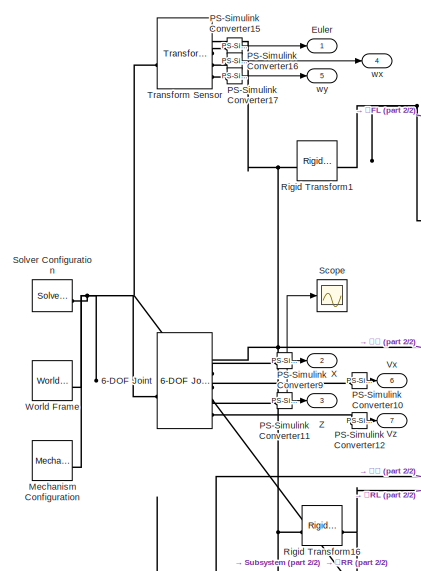
[diagram: Subsystem - part 1/2, middle left region]
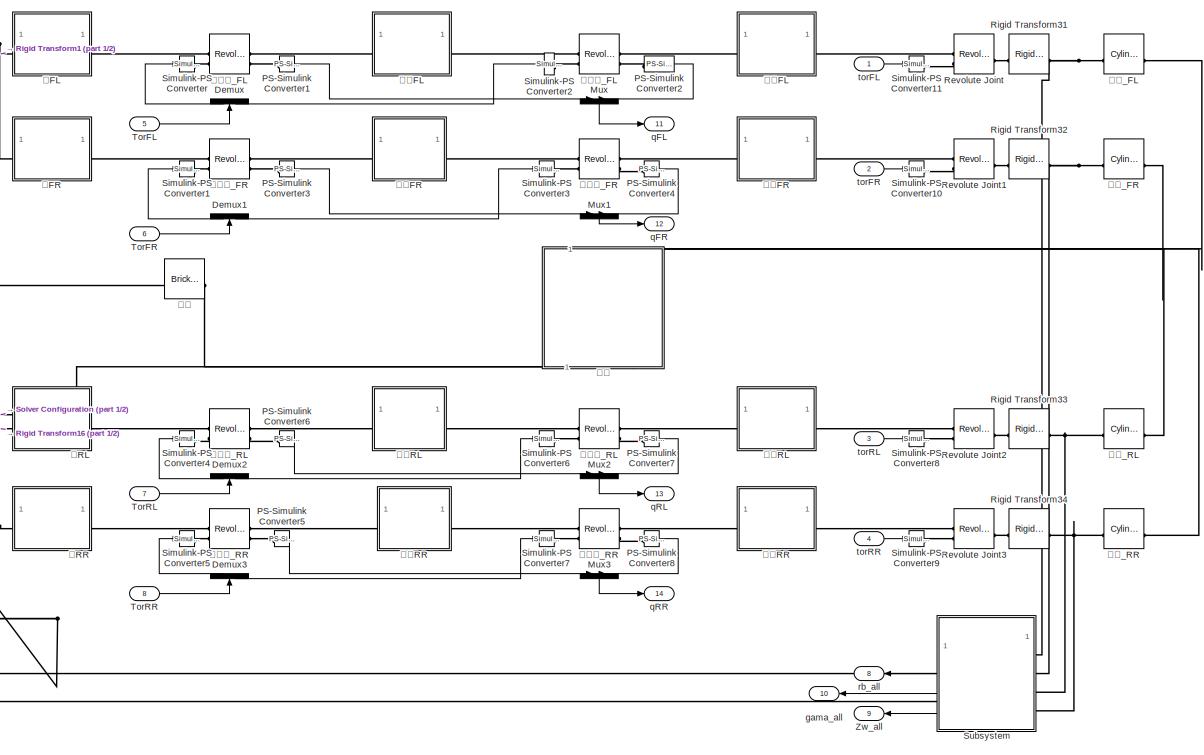
[diagram: Subsystem - part 2/2, most of the canvas]
BLOCK [SubSystem] Subsystem
BLOCK [Reference] Subsystem/6-DOF Joint  REF=sm_lib/Joints/6-DOF Joint
  SourceBlock = sm_lib/Joints/6-DOF Joint
  SourceType = 6-DOF Joint
BLOCK [Demux] Subsystem/Demux
  NameLocation = right
  Outputs = 2
BLOCK [Demux] Subsystem/Demux1
  NameLocation = right
  Outputs = 2
BLOCK [Demux] Subsystem/Demux2
  NameLocation = right
  Outputs = 2
BLOCK [Demux] Subsystem/Demux3
  NameLocation = right
  Outputs = 2
BLOCK [Outport] Subsystem/Euler
  NameLocation = top
BLOCK [Reference] Subsystem/Mechanism Configuration  REF=sm_lib/Utilities/Mechanism
Configuration
  SourceBlock = sm_lib/Utilities/Mechanism\nConfiguration
  SourceType = Mechanism\nConfiguration
BLOCK [Mux] Subsystem/Mux
  DisplayOption = bar
  Inputs = 2
  NameLocation = left
BLOCK [Mux] Subsystem/Mux1
  DisplayOption = bar
  Inputs = 2
  NameLocation = left
BLOCK [Mux] Subsystem/Mux2
  DisplayOption = bar
  Inputs = 2
  NameLocation = left
BLOCK [Mux] Subsystem/Mux3
  DisplayOption = bar
  Inputs = 2
  NameLocation = left
BLOCK [Reference] Subsystem/PS-Simulink Converter1  REF=nesl_utility/PS-Simulink
Converter
  SourceBlock = nesl_utility/PS-Simulink\nConverter
  SourceType = PS-Simulink\nConverter
BLOCK [Reference] Subsystem/PS-Simulink Converter10  REF=nesl_utility/PS-Simulink
Converter
  SourceBlock = nesl_utility/PS-Simulink\nConverter
  SourceType = PS-Simulink\nConverter
BLOCK [Reference] Subsystem/PS-Simulink Converter11  REF=nesl_utility/PS-Simulink
Converter
  SourceBlock = nesl_utility/PS-Simulink\nConverter
  SourceType = PS-Simulink\nConverter
BLOCK [Reference] Subsystem/PS-Simulink Converter12  REF=nesl_utility/PS-Simulink
Converter
  SourceBlock = nesl_utility/PS-Simulink\nConverter
  SourceType = PS-Simulink\nConverter
BLOCK [Reference] Subsystem/PS-Simulink Converter15  REF=nesl_utility/PS-Simulink
Converter
  SourceBlock = nesl_utility/PS-Simulink\nConverter
  SourceType = PS-Simulink\nConverter
BLOCK [Reference] Subsystem/PS-Simulink Converter16  REF=nesl_utility/PS-Simulink
Converter
  SourceBlock = nesl_utility/PS-Simulink\nConverter
  SourceType = PS-Simulink\nConverter
BLOCK [Reference] Subsystem/PS-Simulink Converter17  REF=nesl_utility/PS-Simulink
Converter
  SourceBlock = nesl_utility/PS-Simulink\nConverter
  SourceType = PS-Simulink\nConverter
BLOCK [Reference] Subsystem/PS-Simulink Converter2  REF=nesl_utility/PS-Simulink
Converter
  SourceBlock = nesl_utility/PS-Simulink\nConverter
  SourceType = PS-Simulink\nConverter
BLOCK [Reference] Subsystem/PS-Simulink Converter3  REF=nesl_utility/PS-Simulink
Converter
  SourceBlock = nesl_utility/PS-Simulink\nConverter
  SourceType = PS-Simulink\nConverter
BLOCK [Reference] Subsystem/PS-Simulink Converter4  REF=nesl_utility/PS-Simulink
Converter
  SourceBlock = nesl_utility/PS-Simulink\nConverter
  SourceType = PS-Simulink\nConverter
BLOCK [Reference] Subsystem/PS-Simulink Converter5  REF=nesl_utility/PS-Simulink
Converter
  SourceBlock = nesl_utility/PS-Simulink\nConverter
  SourceType = PS-Simulink\nConverter
BLOCK [Reference] Subsystem/PS-Simulink Converter6  REF=nesl_utility/PS-Simulink
Converter
  SourceBlock = nesl_utility/PS-Simulink\nConverter
  SourceType = PS-Simulink\nConverter
BLOCK [Reference] Subsystem/PS-Simulink Converter7  REF=nesl_utility/PS-Simulink
Converter
  SourceBlock = nesl_utility/PS-Simulink\nConverter
  SourceType = PS-Simulink\nConverter
BLOCK [Reference] Subsystem/PS-Simulink Converter8  REF=nesl_utility/PS-Simulink
Converter
  SourceBlock = nesl_utility/PS-Simulink\nConverter
  SourceType = PS-Simulink\nConverter
BLOCK [Reference] Subsystem/PS-Simulink Converter9  REF=nesl_utility/PS-Simulink
Converter
  SourceBlock = nesl_utility/PS-Simulink\nConverter
  SourceType = PS-Simulink\nConverter
BLOCK [Reference] Subsystem/Revolute Joint  REF=sm_lib/Joints/Revolute Joint
  SourceBlock = sm_lib/Joints/Revolute Joint
  SourceType = Revolute Joint
BLOCK [Reference] Subsystem/Revolute Joint1  REF=sm_lib/Joints/Revolute Joint
  SourceBlock = sm_lib/Joints/Revolute Joint
  SourceType = Revolute Joint
BLOCK [Reference] Subsystem/Revolute Joint2  REF=sm_lib/Joints/Revolute Joint
  SourceBlock = sm_lib/Joints/Revolute Joint
  SourceType = Revolute Joint
BLOCK [Reference] Subsystem/Revolute Joint3  REF=sm_lib/Joints/Revolute Joint
  SourceBlock = sm_lib/Joints/Revolute Joint
  SourceType = Revolute Joint
BLOCK [Reference] Subsystem/Rigid Transform1  REF=sm_lib/Frames and
Transforms/Rigid
Transform
  SourceBlock = sm_lib/Frames and\nTransforms/Rigid\nTransform
  SourceType = Rigid\nTransform
BLOCK [Reference] Subsystem/Rigid Transform16  REF=sm_lib/Frames and
Transforms/Rigid
Transform
  SourceBlock = sm_lib/Frames and\nTransforms/Rigid\nTransform
  SourceType = Rigid\nTransform
BLOCK [Reference] Subsystem/Rigid Transform31  REF=sm_lib/Frames and
Transforms/Rigid
Transform
  SourceBlock = sm_lib/Frames and\nTransforms/Rigid\nTransform
  SourceType = Rigid\nTransform
BLOCK [Reference] Subsystem/Rigid Transform32  REF=sm_lib/Frames and
Transforms/Rigid
Transform
  SourceBlock = sm_lib/Frames and\nTransforms/Rigid\nTransform
  SourceType = Rigid\nTransform
BLOCK [Reference] Subsystem/Rigid Transform33  REF=sm_lib/Frames and
Transforms/Rigid
Transform
  SourceBlock = sm_lib/Frames and\nTransforms/Rigid\nTransform
  SourceType = Rigid\nTransform
BLOCK [Reference] Subsystem/Rigid Transform34  REF=sm_lib/Frames and
Transforms/Rigid
Transform
  SourceBlock = sm_lib/Frames and\nTransforms/Rigid\nTransform
  SourceType = Rigid\nTransform
BLOCK [Scope] Subsystem/Scope
  Floating = off
  NumInputPorts = 1
  ScopeSpecificationString = Simulink.scopes.TimeScopeBlockCfg('CurrentConfiguration', extmgr.ConfigurationSet(extmgr.Configuration('Core','General UI',true),extmgr.Configuration('Core','Source UI',true),extmgr.Configuration('Sources','WiredSimulink',true,'DataLoggingVariableName','ScopeData2'),extmgr.Configuration('Visuals','Time Domain',true,'SerializedDisplays',{struct('MinYLimReal','-0.11741','MaxYLimReal','0.19799','YLab...<+1485ch>
BLOCK [Reference] Subsystem/Simulink-PS Converter  REF=nesl_utility/Simulink-PS
Converter
  SourceBlock = nesl_utility/Simulink-PS\nConverter
  SourceType = Simulink-PS\nConverter
BLOCK [Reference] Subsystem/Simulink-PS Converter1  REF=nesl_utility/Simulink-PS
Converter
  SourceBlock = nesl_utility/Simulink-PS\nConverter
  SourceType = Simulink-PS\nConverter
BLOCK [Reference] Subsystem/Simulink-PS Converter10  REF=nesl_utility/Simulink-PS
Converter
  SourceBlock = nesl_utility/Simulink-PS\nConverter
  SourceType = Simulink-PS\nConverter
BLOCK [Reference] Subsystem/Simulink-PS Converter11  REF=nesl_utility/Simulink-PS
Converter
  SourceBlock = nesl_utility/Simulink-PS\nConverter
  SourceType = Simulink-PS\nConverter
BLOCK [Reference] Subsystem/Simulink-PS Converter2  REF=nesl_utility/Simulink-PS
Converter
  SourceBlock = nesl_utility/Simulink-PS\nConverter
  SourceType = Simulink-PS\nConverter
BLOCK [Reference] Subsystem/Simulink-PS Converter3  REF=nesl_utility/Simulink-PS
Converter
  SourceBlock = nesl_utility/Simulink-PS\nConverter
  SourceType = Simulink-PS\nConverter
BLOCK [Reference] Subsystem/Simulink-PS Converter4  REF=nesl_utility/Simulink-PS
Converter
  SourceBlock = nesl_utility/Simulink-PS\nConverter
  SourceType = Simulink-PS\nConverter
BLOCK [Reference] Subsystem/Simulink-PS Converter5  REF=nesl_utility/Simulink-PS
Converter
  SourceBlock = nesl_utility/Simulink-PS\nConverter
  SourceType = Simulink-PS\nConverter
BLOCK [Reference] Subsystem/Simulink-PS Converter6  REF=nesl_utility/Simulink-PS
Converter
  SourceBlock = nesl_utility/Simulink-PS\nConverter
  SourceType = Simulink-PS\nConverter
BLOCK [Reference] Subsystem/Simulink-PS Converter7  REF=nesl_utility/Simulink-PS
Converter
  SourceBlock = nesl_utility/Simulink-PS\nConverter
  SourceType = Simulink-PS\nConverter
BLOCK [Reference] Subsystem/Simulink-PS Converter8  REF=nesl_utility/Simulink-PS
Converter
  SourceBlock = nesl_utility/Simulink-PS\nConverter
  SourceType = Simulink-PS\nConverter
BLOCK [Reference] Subsystem/Simulink-PS Converter9  REF=nesl_utility/Simulink-PS
Converter
  SourceBlock = nesl_utility/Simulink-PS\nConverter
  SourceType = Simulink-PS\nConverter
BLOCK [Reference] Subsystem/Solver Configuration  REF=nesl_utility/Solver
Configuration
  SourceBlock = nesl_utility/Solver\nConfiguration
  SourceType = Solver\nConfiguration
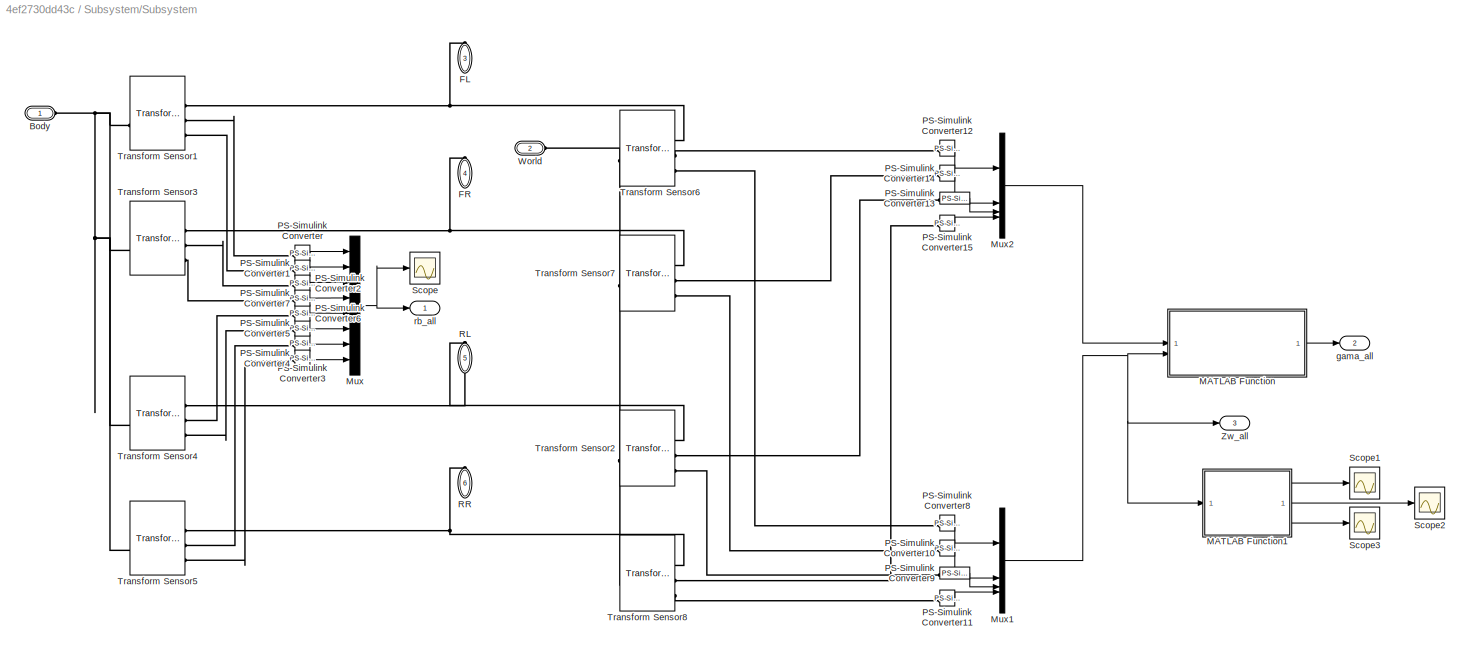
BLOCK [SubSystem] Subsystem/Subsystem
  PortSchema = {"entries":[{"content":{"sides":[{"content":{"connectorIds":["LConn1","LConn2","Out1","Out2","Out3"]},"type":"ConnectorPlacement.EquallySpacedRectSide","uuid":"484c365e-d1e1-4e50-bcb1-6e6da53ee64a"},{"content":{"connectorIds":["RConn1","RConn2","RConn3","RConn4"],"side":"RIGHT"},"type":"ConnectorPlacement.EquallySpacedRectSide","uuid":"ef63b90f-3692-4cec-9a14-57898ee0d7c8"},{"content":{"connectorI...<+302ch>
BLOCK [PMIOPort] Subsystem/Subsystem/Body
  Side = Left
BLOCK [PMIOPort] Subsystem/Subsystem/FL
  NameLocation = left
  Port = 3
  Side = Right
BLOCK [PMIOPort] Subsystem/Subsystem/FR
  NameLocation = left
  Port = 4
  Side = Right
BLOCK [SubSystem] Subsystem/Subsystem/MATLAB Function
  ErrorFcn = Stateflow.Translate.translate
  LibrarySourceBlock = simulink/User-Defined\nFunctions/MATLAB Function
  PermitHierarchicalResolution = ExplicitOnly
  SFBlockType = MATLAB Function
  TreatAsAtomicUnit = on
BLOCK [Demux] Subsystem/Subsystem/MATLAB Function/ Demux 
  Outputs = 1
BLOCK [S-Function] Subsystem/Subsystem/MATLAB Function/ SFunction 
  EnableBusSupport = on
  FunctionName = sf_sfun
  PortCounts = [2 2]
  SFcnIsStateOwnerBlock = off
  SFunctionDeploymentMode = off
  Tag = Stateflow S-Function 11
BLOCK [Terminator] Subsystem/Subsystem/MATLAB Function/ Terminator 
BLOCK [Outport] Subsystem/Subsystem/MATLAB Function/gama_all
BLOCK [Inport] Subsystem/Subsystem/MATLAB Function/xi
BLOCK [Inport] Subsystem/Subsystem/MATLAB Function/zi
  Port = 2
BLOCK [SubSystem] Subsystem/Subsystem/MATLAB Function1
  ErrorFcn = Stateflow.Translate.translate
  LibrarySourceBlock = simulink/User-Defined\nFunctions/MATLAB Function
  PermitHierarchicalResolution = ExplicitOnly
  SFBlockType = MATLAB Function
  TreatAsAtomicUnit = on
BLOCK [Demux] Subsystem/Subsystem/MATLAB Function1/ Demux 
  Outputs = 1
BLOCK [S-Function] Subsystem/Subsystem/MATLAB Function1/ SFunction 
  EnableBusSupport = on
  FunctionName = sf_sfun
  PortCounts = [1 4]
  SFcnIsStateOwnerBlock = off
  SFunctionDeploymentMode = off
  Tag = Stateflow S-Function 10
BLOCK [Terminator] Subsystem/Subsystem/MATLAB Function1/ Terminator 
BLOCK [Inport] Subsystem/Subsystem/MATLAB Function1/Zw_all
BLOCK [Outport] Subsystem/Subsystem/MATLAB Function1/delta_z
  Port = 3
BLOCK [Outport] Subsystem/Subsystem/MATLAB Function1/z_max
BLOCK [Outport] Subsystem/Subsystem/MATLAB Function1/z_min
  Port = 2
BLOCK [Mux] Subsystem/Subsystem/Mux
  DisplayOption = bar
  Inputs = 8
BLOCK [Mux] Subsystem/Subsystem/Mux1
  DisplayOption = bar
BLOCK [Mux] Subsystem/Subsystem/Mux2
  DisplayOption = bar
BLOCK [Reference] Subsystem/Subsystem/PS-Simulink Converter  REF=nesl_utility/PS-Simulink
Converter
  SourceBlock = nesl_utility/PS-Simulink\nConverter
  SourceType = PS-Simulink\nConverter
BLOCK [Reference] Subsystem/Subsystem/PS-Simulink Converter1  REF=nesl_utility/PS-Simulink
Converter
  SourceBlock = nesl_utility/PS-Simulink\nConverter
  SourceType = PS-Simulink\nConverter
BLOCK [Reference] Subsystem/Subsystem/PS-Simulink Converter10  REF=nesl_utility/PS-Simulink
Converter
  NameLocation = right
  SourceBlock = nesl_utility/PS-Simulink\nConverter
  SourceType = PS-Simulink\nConverter
BLOCK [Reference] Subsystem/Subsystem/PS-Simulink Converter11  REF=nesl_utility/PS-Simulink
Converter
  SourceBlock = nesl_utility/PS-Simulink\nConverter
  SourceType = PS-Simulink\nConverter
BLOCK [Reference] Subsystem/Subsystem/PS-Simulink Converter12  REF=nesl_utility/PS-Simulink
Converter
  SourceBlock = nesl_utility/PS-Simulink\nConverter
  SourceType = PS-Simulink\nConverter
BLOCK [Reference] Subsystem/Subsystem/PS-Simulink Converter13  REF=nesl_utility/PS-Simulink
Converter
  SourceBlock = nesl_utility/PS-Simulink\nConverter
  SourceType = PS-Simulink\nConverter
BLOCK [Reference] Subsystem/Subsystem/PS-Simulink Converter14  REF=nesl_utility/PS-Simulink
Converter
  NameLocation = right
  SourceBlock = nesl_utility/PS-Simulink\nConverter
  SourceType = PS-Simulink\nConverter
BLOCK [Reference] Subsystem/Subsystem/PS-Simulink Converter15  REF=nesl_utility/PS-Simulink
Converter
  SourceBlock = nesl_utility/PS-Simulink\nConverter
  SourceType = PS-Simulink\nConverter
BLOCK [Reference] Subsystem/Subsystem/PS-Simulink Converter2  REF=nesl_utility/PS-Simulink
Converter
  SourceBlock = nesl_utility/PS-Simulink\nConverter
  SourceType = PS-Simulink\nConverter
BLOCK [Reference] Subsystem/Subsystem/PS-Simulink Converter3  REF=nesl_utility/PS-Simulink
Converter
  SourceBlock = nesl_utility/PS-Simulink\nConverter
  SourceType = PS-Simulink\nConverter
BLOCK [Reference] Subsystem/Subsystem/PS-Simulink Converter4  REF=nesl_utility/PS-Simulink
Converter
  SourceBlock = nesl_utility/PS-Simulink\nConverter
  SourceType = PS-Simulink\nConverter
BLOCK [Reference] Subsystem/Subsystem/PS-Simulink Converter5  REF=nesl_utility/PS-Simulink
Converter
  SourceBlock = nesl_utility/PS-Simulink\nConverter
  SourceType = PS-Simulink\nConverter
BLOCK [Reference] Subsystem/Subsystem/PS-Simulink Converter6  REF=nesl_utility/PS-Simulink
Converter
  SourceBlock = nesl_utility/PS-Simulink\nConverter
  SourceType = PS-Simulink\nConverter
BLOCK [Reference] Subsystem/Subsystem/PS-Simulink Converter7  REF=nesl_utility/PS-Simulink
Converter
  SourceBlock = nesl_utility/PS-Simulink\nConverter
  SourceType = PS-Simulink\nConverter
BLOCK [Reference] Subsystem/Subsystem/PS-Simulink Converter8  REF=nesl_utility/PS-Simulink
Converter
  SourceBlock = nesl_utility/PS-Simulink\nConverter
  SourceType = PS-Simulink\nConverter
BLOCK [Reference] Subsystem/Subsystem/PS-Simulink Converter9  REF=nesl_utility/PS-Simulink
Converter
  SourceBlock = nesl_utility/PS-Simulink\nConverter
  SourceType = PS-Simulink\nConverter
BLOCK [PMIOPort] Subsystem/Subsystem/RL
  NameLocation = left
  Port = 5
  Side = Right
BLOCK [PMIOPort] Subsystem/Subsystem/RR
  NameLocation = left
  Port = 6
  Side = Right
BLOCK [Scope] Subsystem/Subsystem/Scope
  Floating = off
  NumInputPorts = 1
  ScopeSpecificationString = Simulink.scopes.TimeScopeBlockCfg('CurrentConfiguration', extmgr.ConfigurationSet(extmgr.Configuration('Core','General UI',true),extmgr.Configuration('Core','Source UI',true),extmgr.Configuration('Sources','WiredSimulink',true,'DataLoggingVariableName','ScopeData1'),extmgr.Configuration('Visuals','Time Domain',true,'SerializedDisplays',{struct('MinYLimReal','-0.49846','MaxYLimReal','0.49708','YLab...<+1555ch>
BLOCK [Scope] Subsystem/Subsystem/Scope1
  Floating = off
  NumInputPorts = 1
  ScopeSpecificationString = Simulink.scopes.TimeScopeBlockCfg('CurrentConfiguration', extmgr.ConfigurationSet(extmgr.Configuration('Core','General UI',true),extmgr.Configuration('Core','Source UI',true),extmgr.Configuration('Sources','WiredSimulink',true,'DataLoggingVariableName','ScopeData10'),extmgr.Configuration('Visuals','Time Domain',true,'SerializedDisplays',{struct('MinYLimReal','-0.30636','MaxYLimReal','-0.05519','YL...<+1452ch>
BLOCK [Scope] Subsystem/Subsystem/Scope2
  Floating = off
  NumInputPorts = 1
  ScopeSpecificationString = Simulink.scopes.TimeScopeBlockCfg('CurrentConfiguration', extmgr.ConfigurationSet(extmgr.Configuration('Core','General UI',true),extmgr.Configuration('Core','Source UI',true),extmgr.Configuration('Sources','WiredSimulink',true,'DataLoggingVariableName','ScopeData11'),extmgr.Configuration('Visuals','Time Domain',true,'SerializedDisplays',{struct('MinYLimReal','-0.30799','MaxYLimReal','-0.05584','YL...<+1426ch>
BLOCK [Scope] Subsystem/Subsystem/Scope3
  Floating = off
  NumInputPorts = 1
  ScopeSpecificationString = Simulink.scopes.TimeScopeBlockCfg('CurrentConfiguration', extmgr.ConfigurationSet(extmgr.Configuration('Core','General UI',true),extmgr.Configuration('Core','Source UI',true),extmgr.Configuration('Sources','WiredSimulink',true,'DataLoggingVariableName','ScopeData12'),extmgr.Configuration('Visuals','Time Domain',true,'SerializedDisplays',{struct('MinYLimReal','-0.01971','MaxYLimReal','0.17743','YLa...<+1439ch>
BLOCK [Reference] Subsystem/Subsystem/Transform Sensor1  REF=sm_lib/Frames and
Transforms/Transform
Sensor
  SourceBlock = sm_lib/Frames and\nTransforms/Transform\nSensor
  SourceType = Transform\nSensor
BLOCK [Reference] Subsystem/Subsystem/Transform Sensor2  REF=sm_lib/Frames and
Transforms/Transform
Sensor
  SourceBlock = sm_lib/Frames and\nTransforms/Transform\nSensor
  SourceType = Transform\nSensor
BLOCK [Reference] Subsystem/Subsystem/Transform Sensor3  REF=sm_lib/Frames and
Transforms/Transform
Sensor
  SourceBlock = sm_lib/Frames and\nTransforms/Transform\nSensor
  SourceType = Transform\nSensor
BLOCK [Reference] Subsystem/Subsystem/Transform Sensor4  REF=sm_lib/Frames and
Transforms/Transform
Sensor
  SourceBlock = sm_lib/Frames and\nTransforms/Transform\nSensor
  SourceType = Transform\nSensor
BLOCK [Reference] Subsystem/Subsystem/Transform Sensor5  REF=sm_lib/Frames and
Transforms/Transform
Sensor
  SourceBlock = sm_lib/Frames and\nTransforms/Transform\nSensor
  SourceType = Transform\nSensor
BLOCK [Reference] Subsystem/Subsystem/Transform Sensor6  REF=sm_lib/Frames and
Transforms/Transform
Sensor
  SourceBlock = sm_lib/Frames and\nTransforms/Transform\nSensor
  SourceType = Transform\nSensor
BLOCK [Reference] Subsystem/Subsystem/Transform Sensor7  REF=sm_lib/Frames and
Transforms/Transform
Sensor
  SourceBlock = sm_lib/Frames and\nTransforms/Transform\nSensor
  SourceType = Transform\nSensor
BLOCK [Reference] Subsystem/Subsystem/Transform Sensor8  REF=sm_lib/Frames and
Transforms/Transform
Sensor
  SourceBlock = sm_lib/Frames and\nTransforms/Transform\nSensor
  SourceType = Transform\nSensor
BLOCK [PMIOPort] Subsystem/Subsystem/World
  Port = 2
  Side = Left
BLOCK [Outport] Subsystem/Subsystem/Zw_all
  Port = 3
BLOCK [Outport] Subsystem/Subsystem/gama_all
  Port = 2
BLOCK [Outport] Subsystem/Subsystem/rb_all
BLOCK [Inport] Subsystem/TorFL
  Port = 5
BLOCK [Inport] Subsystem/TorFR
  Port = 6
BLOCK [Inport] Subsystem/TorRL
  Port = 7
BLOCK [Inport] Subsystem/TorRR
  Port = 8
BLOCK [Reference] Subsystem/Transform Sensor  REF=sm_lib/Frames and
Transforms/Transform
Sensor
  SourceBlock = sm_lib/Frames and\nTransforms/Transform\nSensor
  SourceType = Transform\nSensor
BLOCK [Outport] Subsystem/Vx
  Port = 6
BLOCK [Outport] Subsystem/Vz
  Port = 7
BLOCK [Reference] Subsystem/World Frame  REF=sm_lib/Frames and
Transforms/World Frame
  SourceBlock = sm_lib/Frames and\nTransforms/World Frame
  SourceType = World Frame
BLOCK [Outport] Subsystem/X
  NameLocation = top
  Port = 2
BLOCK [Outport] Subsystem/Z
  Port = 3
BLOCK [Outport] Subsystem/Zw_all
  Port = 9
BLOCK [Outport] Subsystem/gama_all
  Port = 10
BLOCK [Outport] Subsystem/qFL
  Port = 11
BLOCK [Outport] Subsystem/qFR
  Port = 12
BLOCK [Outport] Subsystem/qRL
  Port = 13
BLOCK [Outport] Subsystem/qRR
  Port = 14
BLOCK [Outport] Subsystem/rb_all
  NameLocation = top
  Port = 8
BLOCK [Inport] Subsystem/torFL
BLOCK [Inport] Subsystem/torFR
  Port = 2
BLOCK [Inport] Subsystem/torRL
  Port = 3
BLOCK [Inport] Subsystem/torRR
  Port = 4
BLOCK [Outport] Subsystem/wx
  Port = 4
BLOCK [Outport] Subsystem/wy
  Port = 5
BLOCK [SubSystem] Subsystem/地面
  PortSchema = {"entries":[{"content":{"sides":[{"content":{"connectorIds":[]},"type":"ConnectorPlacement.EquallySpacedRectSide","uuid":"017f57e7-bc12-4ceb-9f54-db2814d41597"},{"content":{"connectorIds":[],"side":"RIGHT"},"type":"ConnectorPlacement.EquallySpacedRectSide","uuid":"5968f813-273a-4959-826c-674806204c91"},{"content":{"connectorIds":["LConn1","LConn2"],"side":"TOP"},"type":"ConnectorPlacement.EquallyS...<+425ch>
BLOCK [PMIOPort] Subsystem/地面/Body
  NameLocation = right
  Port = 2
  Side = Left
BLOCK [Reference] Subsystem/地面/Brick Solid  REF=sm_lib/Body Elements/Brick Solid
  NameLocation = right
  SourceBlock = sm_lib/Body Elements/Brick Solid
  SourceType = Brick Solid
BLOCK [Reference] Subsystem/地面/Extruded Solid1  REF=sm_lib/Body Elements/Extruded Solid
  NameLocation = top
  SourceBlock = sm_lib/Body Elements/Extruded Solid
  SourceType = Extruded Solid
BLOCK [Reference] Subsystem/地面/Extruded Solid2  REF=sm_lib/Body Elements/Extruded Solid
  NameLocation = top
  SourceBlock = sm_lib/Body Elements/Extruded Solid
  SourceType = Extruded Solid
BLOCK [Reference] Subsystem/地面/Extruded Solid3  REF=sm_lib/Body Elements/Extruded Solid
  SourceBlock = sm_lib/Body Elements/Extruded Solid
  SourceType = Extruded Solid
BLOCK [PMIOPort] Subsystem/地面/FL
  NameLocation = right
  Port = 6
  Side = Right
BLOCK [PMIOPort] Subsystem/地面/FR
  NameLocation = right
  Port = 5
  Side = Right
BLOCK [PMIOPort] Subsystem/地面/RL
  NameLocation = right
  Port = 4
  Side = Right
BLOCK [PMIOPort] Subsystem/地面/RR
  NameLocation = right
  Port = 3
  Side = Right
BLOCK [Reference] Subsystem/地面/Rigid Transform  REF=sm_lib/Frames and
Transforms/Rigid
Transform
  NameLocation = left
  SourceBlock = sm_lib/Frames and\nTransforms/Rigid\nTransform
  SourceType = Rigid\nTransform
BLOCK [Reference] Subsystem/地面/Rigid Transform1  REF=sm_lib/Frames and
Transforms/Rigid
Transform
  SourceBlock = sm_lib/Frames and\nTransforms/Rigid\nTransform
  SourceType = Rigid\nTransform
BLOCK [Reference] Subsystem/地面/Rigid Transform2  REF=sm_lib/Frames and
Transforms/Rigid
Transform
  SourceBlock = sm_lib/Frames and\nTransforms/Rigid\nTransform
  SourceType = Rigid\nTransform
BLOCK [Reference] Subsystem/地面/Rigid Transform3  REF=sm_lib/Frames and
Transforms/Rigid
Transform
  NameLocation = left
  SourceBlock = sm_lib/Frames and\nTransforms/Rigid\nTransform
  SourceType = Rigid\nTransform
BLOCK [Reference] Subsystem/地面/Rigid Transform4  REF=sm_lib/Frames and
Transforms/Rigid
Transform
  NameLocation = top
  SourceBlock = sm_lib/Frames and\nTransforms/Rigid\nTransform
  SourceType = Rigid\nTransform
BLOCK [Reference] Subsystem/地面/Spatial Contact Force1  REF=sm_lib/Forces and
Torques/Spatial
Contact Force
  NameLocation = top
  SourceBlock = sm_lib/Forces and\nTorques/Spatial\nContact Force
  SourceType = Spatial\nContact Force
BLOCK [Reference] Subsystem/地面/Spatial Contact Force10  REF=sm_lib/Forces and
Torques/Spatial
Contact Force
  SourceBlock = sm_lib/Forces and\nTorques/Spatial\nContact Force
  SourceType = Spatial\nContact Force
BLOCK [Reference] Subsystem/地面/Spatial Contact Force11  REF=sm_lib/Forces and
Torques/Spatial
Contact Force
  SourceBlock = sm_lib/Forces and\nTorques/Spatial\nContact Force
  SourceType = Spatial\nContact Force
BLOCK [Reference] Subsystem/地面/Spatial Contact Force12  REF=sm_lib/Forces and
Torques/Spatial
Contact Force
  NameLocation = top
  SourceBlock = sm_lib/Forces and\nTorques/Spatial\nContact Force
  SourceType = Spatial\nContact Force
BLOCK [Reference] Subsystem/地面/Spatial Contact Force13  REF=sm_lib/Forces and
Torques/Spatial
Contact Force
  NameLocation = top
  SourceBlock = sm_lib/Forces and\nTorques/Spatial\nContact Force
  SourceType = Spatial\nContact Force
BLOCK [Reference] Subsystem/地面/Spatial Contact Force14  REF=sm_lib/Forces and
Torques/Spatial
Contact Force
  NameLocation = top
  SourceBlock = sm_lib/Forces and\nTorques/Spatial\nContact Force
  SourceType = Spatial\nContact Force
BLOCK [Reference] Subsystem/地面/Spatial Contact Force15  REF=sm_lib/Forces and
Torques/Spatial
Contact Force
  NameLocation = top
  SourceBlock = sm_lib/Forces and\nTorques/Spatial\nContact Force
  SourceType = Spatial\nContact Force
BLOCK [Reference] Subsystem/地面/Spatial Contact Force16  REF=sm_lib/Forces and
Torques/Spatial
Contact Force
  SourceBlock = sm_lib/Forces and\nTorques/Spatial\nContact Force
  SourceType = Spatial\nContact Force
BLOCK [Reference] Subsystem/地面/Spatial Contact Force17  REF=sm_lib/Forces and
Torques/Spatial
Contact Force
  SourceBlock = sm_lib/Forces and\nTorques/Spatial\nContact Force
  SourceType = Spatial\nContact Force
BLOCK [Reference] Subsystem/地面/Spatial Contact Force18  REF=sm_lib/Forces and
Torques/Spatial
Contact Force
  SourceBlock = sm_lib/Forces and\nTorques/Spatial\nContact Force
  SourceType = Spatial\nContact Force
BLOCK [Reference] Subsystem/地面/Spatial Contact Force19  REF=sm_lib/Forces and
Torques/Spatial
Contact Force
  SourceBlock = sm_lib/Forces and\nTorques/Spatial\nContact Force
  SourceType = Spatial\nContact Force
BLOCK [Reference] Subsystem/地面/Spatial Contact Force2  REF=sm_lib/Forces and
Torques/Spatial
Contact Force
  SourceBlock = sm_lib/Forces and\nTorques/Spatial\nContact Force
  SourceType = Spatial\nContact Force
BLOCK [Reference] Subsystem/地面/Spatial Contact Force20  REF=sm_lib/Forces and
Torques/Spatial
Contact Force
  SourceBlock = sm_lib/Forces and\nTorques/Spatial\nContact Force
  SourceType = Spatial\nContact Force
BLOCK [Reference] Subsystem/地面/Spatial Contact Force3  REF=sm_lib/Forces and
Torques/Spatial
Contact Force
  SourceBlock = sm_lib/Forces and\nTorques/Spatial\nContact Force
  SourceType = Spatial\nContact Force
BLOCK [Reference] Subsystem/地面/Spatial Contact Force4  REF=sm_lib/Forces and
Torques/Spatial
Contact Force
  SourceBlock = sm_lib/Forces and\nTorques/Spatial\nContact Force
  SourceType = Spatial\nContact Force
BLOCK [Reference] Subsystem/地面/Spatial Contact Force5  REF=sm_lib/Forces and
Torques/Spatial
Contact Force
  NameLocation = top
  SourceBlock = sm_lib/Forces and\nTorques/Spatial\nContact Force
  SourceType = Spatial\nContact Force
BLOCK [Reference] Subsystem/地面/Spatial Contact Force6  REF=sm_lib/Forces and
Torques/Spatial
Contact Force
  NameLocation = top
  SourceBlock = sm_lib/Forces and\nTorques/Spatial\nContact Force
  SourceType = Spatial\nContact Force
BLOCK [Reference] Subsystem/地面/Spatial Contact Force7  REF=sm_lib/Forces and
Torques/Spatial
Contact Force
  NameLocation = top
  SourceBlock = sm_lib/Forces and\nTorques/Spatial\nContact Force
  SourceType = Spatial\nContact Force
BLOCK [Reference] Subsystem/地面/Spatial Contact Force8  REF=sm_lib/Forces and
Torques/Spatial
Contact Force
  NameLocation = top
  SourceBlock = sm_lib/Forces and\nTorques/Spatial\nContact Force
  SourceType = Spatial\nContact Force
BLOCK [Reference] Subsystem/地面/Spatial Contact Force9  REF=sm_lib/Forces and
Torques/Spatial
Contact Force
  NameLocation = top
  SourceBlock = sm_lib/Forces and\nTorques/Spatial\nContact Force
  SourceType = Spatial\nContact Force
BLOCK [PMIOPort] Subsystem/地面/World
  NameLocation = left
  Side = Left
BLOCK [SubSystem] Subsystem/大腿FL
BLOCK [PMIOPort] Subsystem/大腿FL/Conn1
  Side = Left
BLOCK [PMIOPort] Subsystem/大腿FL/Conn2
  Port = 2
  Side = Right
BLOCK [Reference] Subsystem/大腿FL/Rigid Transform2  REF=sm_lib/Frames and
Transforms/Rigid
Transform
  SourceBlock = sm_lib/Frames and\nTransforms/Rigid\nTransform
  SourceType = Rigid\nTransform
BLOCK [Reference] Subsystem/大腿FL/Rigid Transform4  REF=sm_lib/Frames and
Transforms/Rigid
Transform
  SourceBlock = sm_lib/Frames and\nTransforms/Rigid\nTransform
  SourceType = Rigid\nTransform
BLOCK [Reference] Subsystem/大腿FL/Rigid Transform7  REF=sm_lib/Frames and
Transforms/Rigid
Transform
  SourceBlock = sm_lib/Frames and\nTransforms/Rigid\nTransform
  SourceType = Rigid\nTransform
BLOCK [Reference] Subsystem/大腿FL/大腿_FL  REF=sm_lib/Body Elements/Brick Solid
  NameLocation = top
  SourceBlock = sm_lib/Body Elements/Brick Solid
  SourceType = Brick Solid
BLOCK [Reference] Subsystem/大腿FL/膝电机_FL  REF=sm_lib/Body Elements/Cylindrical Solid
  NameLocation = top
  SourceBlock = sm_lib/Body Elements/Cylindrical Solid
  SourceType = Cylindrical Solid
BLOCK [SubSystem] Subsystem/大腿FR
BLOCK [PMIOPort] Subsystem/大腿FR/Conn1
  Side = Left
BLOCK [PMIOPort] Subsystem/大腿FR/Conn2
  Port = 2
  Side = Right
BLOCK [Reference] Subsystem/大腿FR/Rigid Transform11  REF=sm_lib/Frames and
Transforms/Rigid
Transform
  SourceBlock = sm_lib/Frames and\nTransforms/Rigid\nTransform
  SourceType = Rigid\nTransform
BLOCK [Reference] Subsystem/大腿FR/Rigid Transform15  REF=sm_lib/Frames and
Transforms/Rigid
Transform
  SourceBlock = sm_lib/Frames and\nTransforms/Rigid\nTransform
  SourceType = Rigid\nTransform
BLOCK [Reference] Subsystem/大腿FR/Rigid Transform9  REF=sm_lib/Frames and
Transforms/Rigid
Transform
  SourceBlock = sm_lib/Frames and\nTransforms/Rigid\nTransform
  SourceType = Rigid\nTransform
BLOCK [Reference] Subsystem/大腿FR/大腿_FR  REF=sm_lib/Body Elements/Brick Solid
  SourceBlock = sm_lib/Body Elements/Brick Solid
  SourceType = Brick Solid
BLOCK [Reference] Subsystem/大腿FR/膝电机_FR  REF=sm_lib/Body Elements/Cylindrical Solid
  SourceBlock = sm_lib/Body Elements/Cylindrical Solid
  SourceType = Cylindrical Solid
BLOCK [SubSystem] Subsystem/大腿RL
BLOCK [PMIOPort] Subsystem/大腿RL/Conn1
  Side = Left
BLOCK [PMIOPort] Subsystem/大腿RL/Conn2
  Port = 2
  Side = Right
BLOCK [Reference] Subsystem/大腿RL/Rigid Transform23  REF=sm_lib/Frames and
Transforms/Rigid
Transform
  SourceBlock = sm_lib/Frames and\nTransforms/Rigid\nTransform
  SourceType = Rigid\nTransform
BLOCK [Reference] Subsystem/大腿RL/Rigid Transform25  REF=sm_lib/Frames and
Transforms/Rigid
Transform
  SourceBlock = sm_lib/Frames and\nTransforms/Rigid\nTransform
  SourceType = Rigid\nTransform
BLOCK [Reference] Subsystem/大腿RL/Rigid Transform28  REF=sm_lib/Frames and
Transforms/Rigid
Transform
  SourceBlock = sm_lib/Frames and\nTransforms/Rigid\nTransform
  SourceType = Rigid\nTransform
BLOCK [Reference] Subsystem/大腿RL/大腿_RL  REF=sm_lib/Body Elements/Brick Solid
  NameLocation = top
  SourceBlock = sm_lib/Body Elements/Brick Solid
  SourceType = Brick Solid
BLOCK [Reference] Subsystem/大腿RL/膝电机_RL  REF=sm_lib/Body Elements/Cylindrical Solid
  NameLocation = top
  SourceBlock = sm_lib/Body Elements/Cylindrical Solid
  SourceType = Cylindrical Solid
BLOCK [SubSystem] Subsystem/大腿RR
BLOCK [PMIOPort] Subsystem/大腿RR/Conn1
  Side = Left
BLOCK [PMIOPort] Subsystem/大腿RR/Conn2
  Port = 2
  Side = Right
BLOCK [Reference] Subsystem/大腿RR/Rigid Transform18  REF=sm_lib/Frames and
Transforms/Rigid
Transform
  SourceBlock = sm_lib/Frames and\nTransforms/Rigid\nTransform
  SourceType = Rigid\nTransform
BLOCK [Reference] Subsystem/大腿RR/Rigid Transform22  REF=sm_lib/Frames and
Transforms/Rigid
Transform
  SourceBlock = sm_lib/Frames and\nTransforms/Rigid\nTransform
  SourceType = Rigid\nTransform
BLOCK [Reference] Subsystem/大腿RR/Rigid Transform30  REF=sm_lib/Frames and
Transforms/Rigid
Transform
  SourceBlock = sm_lib/Frames and\nTransforms/Rigid\nTransform
  SourceType = Rigid\nTransform
BLOCK [Reference] Subsystem/大腿RR/大腿_RR  REF=sm_lib/Body Elements/Brick Solid
  SourceBlock = sm_lib/Body Elements/Brick Solid
  SourceType = Brick Solid
BLOCK [Reference] Subsystem/大腿RR/膝电机_RR  REF=sm_lib/Body Elements/Cylindrical Solid
  SourceBlock = sm_lib/Body Elements/Cylindrical Solid
  SourceType = Cylindrical Solid
BLOCK [SubSystem] Subsystem/小腿FL
BLOCK [PMIOPort] Subsystem/小腿FL/Conn1
  Side = Left
BLOCK [PMIOPort] Subsystem/小腿FL/Conn2
  Port = 2
  Side = Right
BLOCK [Reference] Subsystem/小腿FL/Rigid Transform5  REF=sm_lib/Frames and
Transforms/Rigid
Transform
  SourceBlock = sm_lib/Frames and\nTransforms/Rigid\nTransform
  SourceType = Rigid\nTransform
BLOCK [Reference] Subsystem/小腿FL/Rigid Transform6  REF=sm_lib/Frames and
Transforms/Rigid
Transform
  SourceBlock = sm_lib/Frames and\nTransforms/Rigid\nTransform
  SourceType = Rigid\nTransform
BLOCK [Reference] Subsystem/小腿FL/小腿_FL  REF=sm_lib/Body Elements/Brick Solid
  NameLocation = top
  SourceBlock = sm_lib/Body Elements/Brick Solid
  SourceType = Brick Solid
BLOCK [SubSystem] Subsystem/小腿FR
BLOCK [PMIOPort] Subsystem/小腿FR/Conn1
  Side = Left
BLOCK [PMIOPort] Subsystem/小腿FR/Conn2
  Port = 2
  Side = Right
BLOCK [Reference] Subsystem/小腿FR/Rigid Transform12  REF=sm_lib/Frames and
Transforms/Rigid
Transform
  SourceBlock = sm_lib/Frames and\nTransforms/Rigid\nTransform
  SourceType = Rigid\nTransform
BLOCK [Reference] Subsystem/小腿FR/Rigid Transform13  REF=sm_lib/Frames and
Transforms/Rigid
Transform
  SourceBlock = sm_lib/Frames and\nTransforms/Rigid\nTransform
  SourceType = Rigid\nTransform
BLOCK [Reference] Subsystem/小腿FR/小腿_FR  REF=sm_lib/Body Elements/Brick Solid
  SourceBlock = sm_lib/Body Elements/Brick Solid
  SourceType = Brick Solid
BLOCK [SubSystem] Subsystem/小腿RL
BLOCK [PMIOPort] Subsystem/小腿RL/Conn1
  Side = Left
BLOCK [PMIOPort] Subsystem/小腿RL/Conn2
  Port = 2
  Side = Right
BLOCK [Reference] Subsystem/小腿RL/Rigid Transform26  REF=sm_lib/Frames and
Transforms/Rigid
Transform
  SourceBlock = sm_lib/Frames and\nTransforms/Rigid\nTransform
  SourceType = Rigid\nTransform
BLOCK [Reference] Subsystem/小腿RL/Rigid Transform27  REF=sm_lib/Frames and
Transforms/Rigid
Transform
  SourceBlock = sm_lib/Frames and\nTransforms/Rigid\nTransform
  SourceType = Rigid\nTransform
BLOCK [Reference] Subsystem/小腿RL/小腿_RL  REF=sm_lib/Body Elements/Brick Solid
  NameLocation = top
  SourceBlock = sm_lib/Body Elements/Brick Solid
  SourceType = Brick Solid
BLOCK [SubSystem] Subsystem/小腿RR
BLOCK [PMIOPort] Subsystem/小腿RR/Conn1
  Side = Left
BLOCK [PMIOPort] Subsystem/小腿RR/Conn2
  Port = 2
  Side = Right
BLOCK [Reference] Subsystem/小腿RR/Rigid Transform19  REF=sm_lib/Frames and
Transforms/Rigid
Transform
  SourceBlock = sm_lib/Frames and\nTransforms/Rigid\nTransform
  SourceType = Rigid\nTransform
BLOCK [Reference] Subsystem/小腿RR/Rigid Transform20  REF=sm_lib/Frames and
Transforms/Rigid
Transform
  SourceBlock = sm_lib/Frames and\nTransforms/Rigid\nTransform
  SourceType = Rigid\nTransform
BLOCK [Reference] Subsystem/小腿RR/小腿_RR  REF=sm_lib/Body Elements/Brick Solid
  SourceBlock = sm_lib/Body Elements/Brick Solid
  SourceType = Brick Solid
BLOCK [Reference] Subsystem/机体  REF=sm_lib/Body Elements/Brick Solid
  SourceBlock = sm_lib/Body Elements/Brick Solid
  SourceType = Brick Solid
BLOCK [Reference] Subsystem/膝关节_FL  REF=sm_lib/Joints/Revolute Joint
  SourceBlock = sm_lib/Joints/Revolute Joint
  SourceType = Revolute Joint
BLOCK [Reference] Subsystem/膝关节_FR  REF=sm_lib/Joints/Revolute Joint
  SourceBlock = sm_lib/Joints/Revolute Joint
  SourceType = Revolute Joint
BLOCK [Reference] Subsystem/膝关节_RL  REF=sm_lib/Joints/Revolute Joint
  SourceBlock = sm_lib/Joints/Revolute Joint
  SourceType = Revolute Joint
BLOCK [Reference] Subsystem/膝关节_RR  REF=sm_lib/Joints/Revolute Joint
  SourceBlock = sm_lib/Joints/Revolute Joint
  SourceType = Revolute Joint
BLOCK [Reference] Subsystem/车轮_FL  REF=sm_lib/Body Elements/Cylindrical Solid
  SourceBlock = sm_lib/Body Elements/Cylindrical Solid
  SourceType = Cylindrical Solid
BLOCK [Reference] Subsystem/车轮_FR  REF=sm_lib/Body Elements/Cylindrical Solid
  SourceBlock = sm_lib/Body Elements/Cylindrical Solid
  SourceType = Cylindrical Solid
BLOCK [Reference] Subsystem/车轮_RL  REF=sm_lib/Body Elements/Cylindrical Solid
  SourceBlock = sm_lib/Body Elements/Cylindrical Solid
  SourceType = Cylindrical Solid
BLOCK [Reference] Subsystem/车轮_RR  REF=sm_lib/Body Elements/Cylindrical Solid
  SourceBlock = sm_lib/Body Elements/Cylindrical Solid
  SourceType = Cylindrical Solid
BLOCK [SubSystem] Subsystem/髋FL
BLOCK [PMIOPort] Subsystem/髋FL/Conn1
  Side = Right
BLOCK [PMIOPort] Subsystem/髋FL/Conn2
  Port = 2
  Side = Left
BLOCK [Reference] Subsystem/髋FL/Rigid Transform14  REF=sm_lib/Frames and
Transforms/Rigid
Transform
  SourceBlock = sm_lib/Frames and\nTransforms/Rigid\nTransform
  SourceType = Rigid\nTransform
BLOCK [Reference] Subsystem/髋FL/Rigid Transform3  REF=sm_lib/Frames and
Transforms/Rigid
Transform
  SourceBlock = sm_lib/Frames and\nTransforms/Rigid\nTransform
  SourceType = Rigid\nTransform
BLOCK [Reference] Subsystem/髋FL/髋电机_FL  REF=sm_lib/Body Elements/Cylindrical Solid
  NameLocation = top
  SourceBlock = sm_lib/Body Elements/Cylindrical Solid
  SourceType = Cylindrical Solid
BLOCK [SubSystem] Subsystem/髋FR
BLOCK [PMIOPort] Subsystem/髋FR/Conn1
  Side = Left
BLOCK [PMIOPort] Subsystem/髋FR/Conn2
  Port = 2
  Side = Right
BLOCK [Reference] Subsystem/髋FR/Rigid Transform10  REF=sm_lib/Frames and
Transforms/Rigid
Transform
  SourceBlock = sm_lib/Frames and\nTransforms/Rigid\nTransform
  SourceType = Rigid\nTransform
BLOCK [Reference] Subsystem/髋FR/Rigid Transform8  REF=sm_lib/Frames and
Transforms/Rigid
Transform
  SourceBlock = sm_lib/Frames and\nTransforms/Rigid\nTransform
  SourceType = Rigid\nTransform
BLOCK [Reference] Subsystem/髋FR/髋电机_FR  REF=sm_lib/Body Elements/Cylindrical Solid
  SourceBlock = sm_lib/Body Elements/Cylindrical Solid
  SourceType = Cylindrical Solid
BLOCK [SubSystem] Subsystem/髋RL
BLOCK [PMIOPort] Subsystem/髋RL/Conn1
  Side = Right
BLOCK [PMIOPort] Subsystem/髋RL/Conn2
  Port = 2
  Side = Left
BLOCK [Reference] Subsystem/髋RL/Rigid Transform21  REF=sm_lib/Frames and
Transforms/Rigid
Transform
  SourceBlock = sm_lib/Frames and\nTransforms/Rigid\nTransform
  SourceType = Rigid\nTransform
BLOCK [Reference] Subsystem/髋RL/Rigid Transform24  REF=sm_lib/Frames and
Transforms/Rigid
Transform
  SourceBlock = sm_lib/Frames and\nTransforms/Rigid\nTransform
  SourceType = Rigid\nTransform
BLOCK [Reference] Subsystem/髋RL/髋电机_RL  REF=sm_lib/Body Elements/Cylindrical Solid
  NameLocation = top
  SourceBlock = sm_lib/Body Elements/Cylindrical Solid
  SourceType = Cylindrical Solid
BLOCK [SubSystem] Subsystem/髋RR
BLOCK [PMIOPort] Subsystem/髋RR/Conn1
  Side = Left
BLOCK [PMIOPort] Subsystem/髋RR/Conn2
  Port = 2
  Side = Right
BLOCK [Reference] Subsystem/髋RR/Rigid Transform17  REF=sm_lib/Frames and
Transforms/Rigid
Transform
  SourceBlock = sm_lib/Frames and\nTransforms/Rigid\nTransform
  SourceType = Rigid\nTransform
BLOCK [Reference] Subsystem/髋RR/Rigid Transform29  REF=sm_lib/Frames and
Transforms/Rigid
Transform
  SourceBlock = sm_lib/Frames and\nTransforms/Rigid\nTransform
  SourceType = Rigid\nTransform
BLOCK [Reference] Subsystem/髋RR/髋电机_RR  REF=sm_lib/Body Elements/Cylindrical Solid
  SourceBlock = sm_lib/Body Elements/Cylindrical Solid
  SourceType = Cylindrical Solid
BLOCK [Reference] Subsystem/髋关节_FL  REF=sm_lib/Joints/Revolute Joint
  SourceBlock = sm_lib/Joints/Revolute Joint
  SourceType = Revolute Joint
BLOCK [Reference] Subsystem/髋关节_FR  REF=sm_lib/Joints/Revolute Joint
  SourceBlock = sm_lib/Joints/Revolute Joint
  SourceType = Revolute Joint
BLOCK [Reference] Subsystem/髋关节_RL  REF=sm_lib/Joints/Revolute Joint
  SourceBlock = sm_lib/Joints/Revolute Joint
  SourceType = Revolute Joint
BLOCK [Reference] Subsystem/髋关节_RR  REF=sm_lib/Joints/Revolute Joint
  SourceBlock = sm_lib/Joints/Revolute Joint
  SourceType = Revolute Joint
BLOCK [SubSystem] Subsystem1
  PortSchema = {"entries":[{"content":{"sides":[{"content":{"connectorIds":["In1"]},"type":"ConnectorPlacement.EquallySpacedRectSide","uuid":"b663baad-aa9a-48fc-ab96-eca4c43d936f"},{"content":{"connectorIds":["In2","Out1"],"side":"RIGHT"},"type":"ConnectorPlacement.EquallySpacedRectSide","uuid":"34cef309-4ac5-4e9b-9061-f4644e138cd2"},{"content":{"connectorIds":[],"side":"TOP"},"type":"ConnectorPlacement.EquallyS...<+246ch>  <repeated x4 — deduplicated; at blocks: Subsystem1, Subsystem2, Subsystem3, Subsystem4>
BLOCK [Constant] Subsystem1/Constant1
BLOCK [Demux] Subsystem1/Demux
  Outputs = 2
BLOCK [Gain] Subsystem1/Gain
  Gain = 180/pi
BLOCK [Gain] Subsystem1/Gain1
  Gain = 180/pi
BLOCK [SubSystem] Subsystem1/MATLAB Function
  ErrorFcn = Stateflow.Translate.translate
  LibrarySourceBlock = simulink/User-Defined\nFunctions/MATLAB Function
  PermitHierarchicalResolution = ExplicitOnly
  SFBlockType = MATLAB Function
  TreatAsAtomicUnit = on
BLOCK [Demux] Subsystem1/MATLAB Function/ Demux 
  Outputs = 1
BLOCK [S-Function] Subsystem1/MATLAB Function/ SFunction 
  EnableBusSupport = on
  FunctionName = sf_sfun
  PortCounts = [2 3]
  SFcnIsStateOwnerBlock = off
  SFunctionDeploymentMode = off
  Tag = Stateflow S-Function 4
BLOCK [Terminator] Subsystem1/MATLAB Function/ Terminator 
BLOCK [Inport] Subsystem1/MATLAB Function/legIndex
  Port = 2
BLOCK [Outport] Subsystem1/MATLAB Function/qh
BLOCK [Outport] Subsystem1/MATLAB Function/qk
  Port = 2
BLOCK [Inport] Subsystem1/MATLAB Function/rb
BLOCK [Mux] Subsystem1/Mux
  DisplayOption = bar
  Inputs = 2
BLOCK [Reference] Subsystem1/PID Controller  REF=slpidlib/PID Controller
  LibrarySourceBlock = simulink/Continuous/PID Controller
  SourceBlock = slpidlib/PID Controller
  SourceType = PID 1dof
BLOCK [Reference] Subsystem1/PID Controller1  REF=slpidlib/PID Controller
  LibrarySourceBlock = simulink/Continuous/PID Controller
  SourceBlock = slpidlib/PID Controller
  SourceType = PID 1dof
BLOCK [Scope] Subsystem1/Scope4
  Floating = off
  NumInputPorts = 1
  ScopeSpecificationString = Simulink.scopes.TimeScopeBlockCfg('CurrentConfiguration', extmgr.ConfigurationSet(extmgr.Configuration('Core','General UI',true),extmgr.Configuration('Core','Source UI',true),extmgr.Configuration('Sources','WiredSimulink',true,'DataLoggingVariableName','ScopeData10'),extmgr.Configuration('Visuals','Time Domain',true,'SerializedDisplays',{struct('MinYLimReal','141.48392','MaxYLimReal','156.16388','...<+1447ch>
BLOCK [Scope] Subsystem1/Scope5
  Floating = off
  NumInputPorts = 1
  ScopeSpecificationString = Simulink.scopes.TimeScopeBlockCfg('CurrentConfiguration', extmgr.ConfigurationSet(extmgr.Configuration('Core','General UI',true),extmgr.Configuration('Core','Source UI',true),extmgr.Configuration('Sources','WiredSimulink',true,'DataLoggingVariableName','ScopeData11'),extmgr.Configuration('Visuals','Time Domain',true,'SerializedDisplays',{struct('MinYLimReal','-126.60449','MaxYLimReal','-92.08593',...<+1452ch>
BLOCK [Sum] Subsystem1/Sum
  Inputs = |-+
BLOCK [Sum] Subsystem1/Sum1
  Inputs = +-|
BLOCK [Outport] Subsystem1/TorFL
BLOCK [Inport] Subsystem1/qFL
BLOCK [Inport] Subsystem1/rb
  Port = 2
BLOCK [SubSystem] Subsystem2
BLOCK [Constant] Subsystem2/Constant1
  Value = 2
BLOCK [Demux] Subsystem2/Demux
  Outputs = 2
BLOCK [SubSystem] Subsystem2/MATLAB Function
  ErrorFcn = Stateflow.Translate.translate
  LibrarySourceBlock = simulink/User-Defined\nFunctions/MATLAB Function
  PermitHierarchicalResolution = ExplicitOnly
  SFBlockType = MATLAB Function
  TreatAsAtomicUnit = on
BLOCK [Demux] Subsystem2/MATLAB Function/ Demux 
  Outputs = 1
BLOCK [S-Function] Subsystem2/MATLAB Function/ SFunction 
  EnableBusSupport = on
  FunctionName = sf_sfun
  PortCounts = [2 3]
  SFcnIsStateOwnerBlock = off
  SFunctionDeploymentMode = off
  Tag = Stateflow S-Function 5
BLOCK [Terminator] Subsystem2/MATLAB Function/ Terminator 
BLOCK [Inport] Subsystem2/MATLAB Function/legIndex
  Port = 2
BLOCK [Outport] Subsystem2/MATLAB Function/qh
BLOCK [Outport] Subsystem2/MATLAB Function/qk
  Port = 2
BLOCK [Inport] Subsystem2/MATLAB Function/rb
BLOCK [Mux] Subsystem2/Mux
  DisplayOption = bar
  Inputs = 2
BLOCK [Reference] Subsystem2/PID Controller  REF=slpidlib/PID Controller
  LibrarySourceBlock = simulink/Continuous/PID Controller
  SourceBlock = slpidlib/PID Controller
  SourceType = PID 1dof
BLOCK [Reference] Subsystem2/PID Controller1  REF=slpidlib/PID Controller
  LibrarySourceBlock = simulink/Continuous/PID Controller
  SourceBlock = slpidlib/PID Controller
  SourceType = PID 1dof
BLOCK [Sum] Subsystem2/Sum
  Inputs = |-+
BLOCK [Sum] Subsystem2/Sum1
  Inputs = +-|
BLOCK [Outport] Subsystem2/TorFL
BLOCK [Inport] Subsystem2/qFL
BLOCK [Inport] Subsystem2/rb
  Port = 2
BLOCK [SubSystem] Subsystem3
BLOCK [Constant] Subsystem3/Constant1
  Value = 3
BLOCK [Demux] Subsystem3/Demux
  Outputs = 2
BLOCK [Gain] Subsystem3/Gain
  Gain = 180/pi
BLOCK [Gain] Subsystem3/Gain1
  Gain = 180/pi
BLOCK [SubSystem] Subsystem3/MATLAB Function
  ErrorFcn = Stateflow.Translate.translate
  LibrarySourceBlock = simulink/User-Defined\nFunctions/MATLAB Function
  PermitHierarchicalResolution = ExplicitOnly
  SFBlockType = MATLAB Function
  TreatAsAtomicUnit = on
BLOCK [Demux] Subsystem3/MATLAB Function/ Demux 
  Outputs = 1
BLOCK [S-Function] Subsystem3/MATLAB Function/ SFunction 
  EnableBusSupport = on
  FunctionName = sf_sfun
  PortCounts = [2 3]
  SFcnIsStateOwnerBlock = off
  SFunctionDeploymentMode = off
  Tag = Stateflow S-Function 6
BLOCK [Terminator] Subsystem3/MATLAB Function/ Terminator 
BLOCK [Inport] Subsystem3/MATLAB Function/legIndex
  Port = 2
BLOCK [Outport] Subsystem3/MATLAB Function/qh
BLOCK [Outport] Subsystem3/MATLAB Function/qk
  Port = 2
BLOCK [Inport] Subsystem3/MATLAB Function/rb
BLOCK [Mux] Subsystem3/Mux
  DisplayOption = bar
  Inputs = 2
BLOCK [Reference] Subsystem3/PID Controller  REF=slpidlib/PID Controller
  LibrarySourceBlock = simulink/Continuous/PID Controller
  SourceBlock = slpidlib/PID Controller
  SourceType = PID 1dof
BLOCK [Reference] Subsystem3/PID Controller1  REF=slpidlib/PID Controller
  LibrarySourceBlock = simulink/Continuous/PID Controller
  SourceBlock = slpidlib/PID Controller
  SourceType = PID 1dof
BLOCK [Scope] Subsystem3/Scope4
  Floating = off
  NumInputPorts = 1
  ScopeSpecificationString = Simulink.scopes.TimeScopeBlockCfg('CurrentConfiguration', extmgr.ConfigurationSet(extmgr.Configuration('Core','General UI',true),extmgr.Configuration('Core','Source UI',true),extmgr.Configuration('Sources','WiredSimulink',true,'DataLoggingVariableName','ScopeData4'),extmgr.Configuration('Visuals','Time Domain',true,'SerializedDisplays',{struct('MinYLimReal','143.34692','MaxYLimReal','155.79045','Y...<+1446ch>
BLOCK [Scope] Subsystem3/Scope5
  Floating = off
  NumInputPorts = 1
  ScopeSpecificationString = Simulink.scopes.TimeScopeBlockCfg('CurrentConfiguration', extmgr.ConfigurationSet(extmgr.Configuration('Core','General UI',true),extmgr.Configuration('Core','Source UI',true),extmgr.Configuration('Sources','WiredSimulink',true,'DataLoggingVariableName','ScopeData5'),extmgr.Configuration('Visuals','Time Domain',true,'SerializedDisplays',{struct('MinYLimReal','-126.60449','MaxYLimReal','-92.08593','...<+1451ch>
BLOCK [Sum] Subsystem3/Sum
  Inputs = |-+
BLOCK [Sum] Subsystem3/Sum1
  Inputs = +-|
BLOCK [Outport] Subsystem3/TorFL
BLOCK [Inport] Subsystem3/qFL
BLOCK [Inport] Subsystem3/rb
  Port = 2
BLOCK [SubSystem] Subsystem4
BLOCK [Constant] Subsystem4/Constant1
  Value = 4
BLOCK [Demux] Subsystem4/Demux
  Outputs = 2
BLOCK [SubSystem] Subsystem4/MATLAB Function
  ErrorFcn = Stateflow.Translate.translate
  LibrarySourceBlock = simulink/User-Defined\nFunctions/MATLAB Function
  PermitHierarchicalResolution = ExplicitOnly
  SFBlockType = MATLAB Function
  TreatAsAtomicUnit = on
BLOCK [Demux] Subsystem4/MATLAB Function/ Demux 
  Outputs = 1
BLOCK [S-Function] Subsystem4/MATLAB Function/ SFunction 
  EnableBusSupport = on
  FunctionName = sf_sfun
  PortCounts = [2 3]
  SFcnIsStateOwnerBlock = off
  SFunctionDeploymentMode = off
  Tag = Stateflow S-Function 7
BLOCK [Terminator] Subsystem4/MATLAB Function/ Terminator 
BLOCK [Inport] Subsystem4/MATLAB Function/legIndex
  Port = 2
BLOCK [Outport] Subsystem4/MATLAB Function/qh
BLOCK [Outport] Subsystem4/MATLAB Function/qk
  Port = 2
BLOCK [Inport] Subsystem4/MATLAB Function/rb
BLOCK [Mux] Subsystem4/Mux
  DisplayOption = bar
  Inputs = 2
BLOCK [Reference] Subsystem4/PID Controller  REF=slpidlib/PID Controller
  LibrarySourceBlock = simulink/Continuous/PID Controller
  SourceBlock = slpidlib/PID Controller
  SourceType = PID 1dof
BLOCK [Reference] Subsystem4/PID Controller1  REF=slpidlib/PID Controller
  LibrarySourceBlock = simulink/Continuous/PID Controller
  SourceBlock = slpidlib/PID Controller
  SourceType = PID 1dof
BLOCK [Sum] Subsystem4/Sum
  Inputs = |-+
BLOCK [Sum] Subsystem4/Sum1
  Inputs = +-|
BLOCK [Outport] Subsystem4/TorFL
BLOCK [Inport] Subsystem4/qFL
BLOCK [Inport] Subsystem4/rb
  Port = 2
BLOCK [SubSystem] Subsystem5
  PortSchema = {"entries":[{"content":{"sides":[{"content":{"connectorIds":["In1"]},"type":"ConnectorPlacement.EquallySpacedRectSide","uuid":"08e64f1e-0d8a-41f7-ab2f-ff1aaac2807d"},{"content":{"connectorIds":["Out1","Out2"],"side":"RIGHT"},"type":"ConnectorPlacement.EquallySpacedRectSide","uuid":"3177df92-0b39-41fc-a081-603bf6b5809c"},{"content":{"connectorIds":["In2"],"side":"TOP"},"type":"ConnectorPlacement.Eq...<+413ch>
BLOCK [Clock] Subsystem5/Clock2
  NameLocation = top
BLOCK [Constant] Subsystem5/Constant
  NameLocation = right
  Value = 0
BLOCK [Constant] Subsystem5/Constant1
  Value = 0
BLOCK [Derivative] Subsystem5/Derivative
BLOCK [Gain] Subsystem5/Gain
  Gain = 10
  NameLocation = right
BLOCK [Integrator] Subsystem5/Integrator
  NameLocation = top
BLOCK [SubSystem] Subsystem5/MATLAB Function
  ErrorFcn = Stateflow.Translate.translate
  LibrarySourceBlock = simulink/User-Defined\nFunctions/MATLAB Function
  PermitHierarchicalResolution = ExplicitOnly
  SFBlockType = MATLAB Function
  TreatAsAtomicUnit = on
BLOCK [Demux] Subsystem5/MATLAB Function/ Demux 
  Outputs = 1
BLOCK [S-Function] Subsystem5/MATLAB Function/ SFunction 
  EnableBusSupport = on
  FunctionName = sf_sfun
  PortCounts = [5 2]
  SFcnIsStateOwnerBlock = off
  SFunctionDeploymentMode = off
  Tag = Stateflow S-Function 2
BLOCK [Terminator] Subsystem5/MATLAB Function/ Terminator 
BLOCK [Inport] Subsystem5/MATLAB Function/I_ext
  Port = 3
BLOCK [Outport] Subsystem5/MATLAB Function/Uk
BLOCK [Inport] Subsystem5/MATLAB Function/X0
BLOCK [Inport] Subsystem5/MATLAB Function/X_ref_single
  Port = 2
BLOCK [Inport] Subsystem5/MATLAB Function/gama_all
  Port = 4
BLOCK [Inport] Subsystem5/MATLAB Function/rb_all
  Port = 5
BLOCK [SubSystem] Subsystem5/MATLAB Function1
  ErrorFcn = Stateflow.Translate.translate
  LibrarySourceBlock = simulink/User-Defined\nFunctions/MATLAB Function
  PermitHierarchicalResolution = ExplicitOnly
  SFBlockType = MATLAB Function
  TreatAsAtomicUnit = on
BLOCK [Demux] Subsystem5/MATLAB Function1/ Demux 
  Outputs = 1
BLOCK [S-Function] Subsystem5/MATLAB Function1/ SFunction 
  EnableBusSupport = on
  FunctionName = sf_sfun
  PortCounts = [2 2]
  SFcnIsStateOwnerBlock = off
  SFunctionDeploymentMode = off
  Tag = Stateflow S-Function 1
BLOCK [Terminator] Subsystem5/MATLAB Function1/ Terminator 
BLOCK [Outport] Subsystem5/MATLAB Function1/Torque_all
BLOCK [Inport] Subsystem5/MATLAB Function1/fd_all
BLOCK [Inport] Subsystem5/MATLAB Function1/rb_all
  Port = 2
BLOCK [SubSystem] Subsystem5/MATLAB Function2
  ErrorFcn = Stateflow.Translate.translate
  LibrarySourceBlock = simulink/User-Defined\nFunctions/MATLAB Function
  PermitHierarchicalResolution = ExplicitOnly
  SFBlockType = MATLAB Function
  TreatAsAtomicUnit = on
BLOCK [Demux] Subsystem5/MATLAB Function2/ Demux 
  Outputs = 1
BLOCK [S-Function] Subsystem5/MATLAB Function2/ SFunction 
  EnableBusSupport = on
  FunctionName = sf_sfun
  PortCounts = [1 2]
  SFcnIsStateOwnerBlock = off
  SFunctionDeploymentMode = off
  Tag = Stateflow S-Function 3
BLOCK [Terminator] Subsystem5/MATLAB Function2/ Terminator 
BLOCK [Inport] Subsystem5/MATLAB Function2/Zw_all
BLOCK [Outport] Subsystem5/MATLAB Function2/pdz
BLOCK [SubSystem] Subsystem5/MATLAB Function3
  ErrorFcn = Stateflow.Translate.translate
  LibrarySourceBlock = simulink/User-Defined\nFunctions/MATLAB Function
  NameLocation = top
  PermitHierarchicalResolution = ExplicitOnly
  SFBlockType = MATLAB Function
  TreatAsAtomicUnit = on
BLOCK [Demux] Subsystem5/MATLAB Function3/ Demux 
  Outputs = 1
BLOCK [S-Function] Subsystem5/MATLAB Function3/ SFunction 
  EnableBusSupport = on
  FunctionName = sf_sfun
  PortCounts = [1 2]
  SFcnIsStateOwnerBlock = off
  SFunctionDeploymentMode = off
  Tag = Stateflow S-Function 9
BLOCK [Terminator] Subsystem5/MATLAB Function3/ Terminator 
BLOCK [Outport] Subsystem5/MATLAB Function3/gama
BLOCK [Inport] Subsystem5/MATLAB Function3/gama_all
BLOCK [SubSystem] Subsystem5/MATLAB Function4
  ErrorFcn = Stateflow.Translate.translate
  LibrarySourceBlock = simulink/User-Defined\nFunctions/MATLAB Function
  NameLocation = top
  PermitHierarchicalResolution = ExplicitOnly
  SFBlockType = MATLAB Function
  TreatAsAtomicUnit = on
BLOCK [Demux] Subsystem5/MATLAB Function4/ Demux 
  Outputs = 1
BLOCK [S-Function] Subsystem5/MATLAB Function4/ SFunction 
  EnableBusSupport = on
  FunctionName = sf_sfun
  PortCounts = [1 2]
  SFcnIsStateOwnerBlock = off
  SFunctionDeploymentMode = off
  Tag = Stateflow S-Function 14
BLOCK [Terminator] Subsystem5/MATLAB Function4/ Terminator 
BLOCK [Inport] Subsystem5/MATLAB Function4/t
BLOCK [Outport] Subsystem5/MATLAB Function4/vx
BLOCK [Mux] Subsystem5/Mux
  DisplayOption = bar
  Inputs = 8
  NameLocation = left
BLOCK [Mux] Subsystem5/Mux1
  DisplayOption = bar
  Inputs = 8
  NameLocation = right
BLOCK [Scope] Subsystem5/Scope
  Floating = off
  NameLocation = right
  NumInputPorts = 1
  ScopeSpecificationString = Simulink.scopes.TimeScopeBlockCfg('CurrentConfiguration', extmgr.ConfigurationSet(extmgr.Configuration('Core','General UI',true),extmgr.Configuration('Core','Source UI',true),extmgr.Configuration('Sources','WiredSimulink',true,'DataLoggingVariableName','ScopeData1'),extmgr.Configuration('Visuals','Time Domain',true,'SerializedDisplays',{struct('MinYLimReal','-66.76075','MaxYLimReal','71.95043','YL...<+1572ch>
BLOCK [Scope] Subsystem5/Scope1
  Floating = off
  NameLocation = left
  NumInputPorts = 1
  ScopeSpecificationString = Simulink.scopes.TimeScopeBlockCfg('CurrentConfiguration', extmgr.ConfigurationSet(extmgr.Configuration('Core','General UI',true),extmgr.Configuration('Core','Source UI',true),extmgr.Configuration('Sources','WiredSimulink',true,'DataLoggingVariableName','ScopeData1'),extmgr.Configuration('Visuals','Time Domain',true,'SerializedDisplays',{struct('MinYLimReal','-0.24708','MaxYLimReal','0.24711','YLab...<+1476ch>
BLOCK [Scope] Subsystem5/Scope2
  Floating = off
  NumInputPorts = 1
  ScopeSpecificationString = Simulink.scopes.TimeScopeBlockCfg('CurrentConfiguration', extmgr.ConfigurationSet(extmgr.Configuration('Core','General UI',true),extmgr.Configuration('Core','Source UI',true),extmgr.Configuration('Sources','WiredSimulink',true,'DataLoggingVariableName','ScopeData1'),extmgr.Configuration('Visuals','Time Domain',true,'SerializedDisplays',{struct('MinYLimReal','-0.30809','MaxYLimReal','-0.055','YLabe...<+1466ch>
BLOCK [Scope] Subsystem5/Scope3
  Floating = off
  NumInputPorts = 1
  ScopeSpecificationString = Simulink.scopes.TimeScopeBlockCfg('CurrentConfiguration', extmgr.ConfigurationSet(extmgr.Configuration('Core','General UI',true),extmgr.Configuration('Core','Source UI',true),extmgr.Configuration('Sources','WiredSimulink',true,'DataLoggingVariableName','ScopeData9'),extmgr.Configuration('Visuals','Time Domain',true,'SerializedDisplays',{struct('MinYLimReal','-0.01912','MaxYLimReal','0.22604','YLab...<+1449ch>
BLOCK [Outport] Subsystem5/Torque_all
  NameLocation = top
BLOCK [Inport] Subsystem5/X0
BLOCK [Inport] Subsystem5/Zw_all
  Port = 4
BLOCK [Inport] Subsystem5/ft
  NameLocation = top
  Port = 2
BLOCK [Inport] Subsystem5/gama_all
  Port = 5
BLOCK [Outport] Subsystem5/pdz
  Port = 2
BLOCK [Inport] Subsystem5/rb_all
  Port = 3
BLOCK [SubSystem] Subsystem6
  NameLocation = top
BLOCK [Clock] Subsystem6/Clock
  NameLocation = top
BLOCK [SubSystem] Subsystem6/MATLAB Function
  ErrorFcn = Stateflow.Translate.translate
  LibrarySourceBlock = simulink/User-Defined\nFunctions/MATLAB Function
  NameLocation = top
  PermitHierarchicalResolution = ExplicitOnly
  SFBlockType = MATLAB Function
  TreatAsAtomicUnit = on
BLOCK [Demux] Subsystem6/MATLAB Function/ Demux 
  Outputs = 1
BLOCK [S-Function] Subsystem6/MATLAB Function/ SFunction 
  EnableBusSupport = on
  FunctionName = sf_sfun
  PortCounts = [1 2]
  SFcnIsStateOwnerBlock = off
  SFunctionDeploymentMode = off
  Tag = Stateflow S-Function 13
BLOCK [Terminator] Subsystem6/MATLAB Function/ Terminator 
BLOCK [Inport] Subsystem6/MATLAB Function/t
BLOCK [Outport] Subsystem6/MATLAB Function/vx
BLOCK [Reference] Subsystem6/PID Controller  REF=slpidlib/PID Controller
  LibrarySourceBlock = simulink/Continuous/PID Controller
  NameLocation = top
  SourceBlock = slpidlib/PID Controller
  SourceType = PID 1dof
BLOCK [Scope] Subsystem6/Scope1
  Floating = off
  NumInputPorts = 1
  ScopeSpecificationString = Simulink.scopes.TimeScopeBlockCfg('CurrentConfiguration', extmgr.ConfigurationSet(extmgr.Configuration('Core','General UI',true),extmgr.Configuration('Core','Source UI',true),extmgr.Configuration('Sources','WiredSimulink',true,'DataLoggingVariableName','ScopeData1'),extmgr.Configuration('Visuals','Time Domain',true,'SerializedDisplays',{struct('MinYLimReal','-4.79177','MaxYLimReal','4.99531','YLab...<+1427ch>
BLOCK [Scope] Subsystem6/Scope2
  Floating = off
  NameLocation = top
  NumInputPorts = 1
  ScopeSpecificationString = Simulink.scopes.TimeScopeBlockCfg('CurrentConfiguration', extmgr.ConfigurationSet(extmgr.Configuration('Core','General UI',true),extmgr.Configuration('Core','Source UI',true),extmgr.Configuration('Sources','WiredSimulink',true,'DataLoggingVariableName','ScopeData3'),extmgr.Configuration('Visuals','Time Domain',true),extmgr.Configuration('Tools','Plot Navigation',true),extmgr.Configuration('Tools',...<+40ch>
BLOCK [Sum] Subsystem6/Sum1
  Inputs = |+-
  NameLocation = top
BLOCK [Outport] Subsystem6/ft
BLOCK [Inport] Subsystem6/vx
  NameLocation = right
BLOCK [Sum] Sum
  Inputs = ++|
  NameLocation = left
ANNOTATION (root): 项目复现自论文 复杂地形下轮腿复合机动平台动态运动控制 个人邮箱：<email>
LINE Demux1:1 -> Subsystem:5
LINE Demux1:2 -> Subsystem:6
LINE Demux1:3 -> Subsystem:7
LINE Demux1:4 -> Subsystem:8
LINE Demux2:1 -> Subsystem1:2
LINE Demux2:2 -> Subsystem2:2
LINE Demux2:3 -> Subsystem3:2
LINE Demux2:4 -> Subsystem4:2
LINE Demux:1 -> Mux2:1
LINE Demux:2 -> Mux2:2
LINE MATLAB Function:1 -> Demux2:1
LINE Mux1:1 -> Sum:1
LINE Mux2:1 -> Subsystem5:1
LINE Subsystem/Demux1:1 -> Subsystem/Simulink-PS Converter1:1
LINE Subsystem/Demux1:2 -> Subsystem/Simulink-PS Converter3:1
LINE Subsystem/Demux2:1 -> Subsystem/Simulink-PS Converter4:1
LINE Subsystem/Demux2:2 -> Subsystem/Simulink-PS Converter6:1
LINE Subsystem/Demux3:1 -> Subsystem/Simulink-PS Converter5:1
LINE Subsystem/Demux3:2 -> Subsystem/Simulink-PS Converter7:1
LINE Subsystem/Demux:1 -> Subsystem/Simulink-PS Converter:1
LINE Subsystem/Demux:2 -> Subsystem/Simulink-PS Converter2:1
LINE Subsystem/Mux1:1 -> Subsystem/qFR:1
LINE Subsystem/Mux2:1 -> Subsystem/qRL:1
LINE Subsystem/Mux3:1 -> Subsystem/qRR:1
LINE Subsystem/Mux:1 -> Subsystem/qFL:1
LINE Subsystem/PS-Simulink Converter10:1 -> Subsystem/Vx:1
NET Subsystem/PS-Simulink Converter11:1 -> Subsystem/Scope:1, Subsystem/Z:1
LINE Subsystem/PS-Simulink Converter12:1 -> Subsystem/Vz:1
LINE Subsystem/PS-Simulink Converter15:1 -> Subsystem/Euler:1
LINE Subsystem/PS-Simulink Converter16:1 -> Subsystem/wx:1
LINE Subsystem/PS-Simulink Converter17:1 -> Subsystem/wy:1
LINE Subsystem/PS-Simulink Converter1:1 -> Subsystem/Mux:1
LINE Subsystem/PS-Simulink Converter2:1 -> Subsystem/Mux:2
LINE Subsystem/PS-Simulink Converter3:1 -> Subsystem/Mux1:1
LINE Subsystem/PS-Simulink Converter4:1 -> Subsystem/Mux1:2
LINE Subsystem/PS-Simulink Converter5:1 -> Subsystem/Mux3:1
LINE Subsystem/PS-Simulink Converter6:1 -> Subsystem/Mux2:1
LINE Subsystem/PS-Simulink Converter7:1 -> Subsystem/Mux2:2
LINE Subsystem/PS-Simulink Converter8:1 -> Subsystem/Mux3:2
LINE Subsystem/PS-Simulink Converter9:1 -> Subsystem/X:1
LINE Subsystem/Subsystem/MATLAB Function1:1 -> Subsystem/Subsystem/Scope1:1
LINE Subsystem/Subsystem/MATLAB Function1:2 -> Subsystem/Subsystem/Scope2:1
LINE Subsystem/Subsystem/MATLAB Function1:3 -> Subsystem/Subsystem/Scope3:1
LINE Subsystem/Subsystem/MATLAB Function:1 -> Subsystem/Subsystem/gama_all:1
NET Subsystem/Subsystem/Mux1:1 -> Subsystem/Subsystem/MATLAB Function1:1, Subsystem/Subsystem/MATLAB Function:2, Subsystem/Subsystem/Zw_all:1
LINE Subsystem/Subsystem/Mux2:1 -> Subsystem/Subsystem/MATLAB Function:1
NET Subsystem/Subsystem/Mux:1 -> Subsystem/Subsystem/Scope:1, Subsystem/Subsystem/rb_all:1
LINE Subsystem/Subsystem/PS-Simulink Converter10:1 -> Subsystem/Subsystem/Mux1:2
LINE Subsystem/Subsystem/PS-Simulink Converter11:1 -> Subsystem/Subsystem/Mux1:4
LINE Subsystem/Subsystem/PS-Simulink Converter12:1 -> Subsystem/Subsystem/Mux2:1
LINE Subsystem/Subsystem/PS-Simulink Converter13:1 -> Subsystem/Subsystem/Mux2:3
LINE Subsystem/Subsystem/PS-Simulink Converter14:1 -> Subsystem/Subsystem/Mux2:2
LINE Subsystem/Subsystem/PS-Simulink Converter15:1 -> Subsystem/Subsystem/Mux2:4
LINE Subsystem/Subsystem/PS-Simulink Converter1:1 -> Subsystem/Subsystem/Mux:2
LINE Subsystem/Subsystem/PS-Simulink Converter2:1 -> Subsystem/Subsystem/Mux:3
LINE Subsystem/Subsystem/PS-Simulink Converter3:1 -> Subsystem/Subsystem/Mux:7
LINE Subsystem/Subsystem/PS-Simulink Converter4:1 -> Subsystem/Subsystem/Mux:8
LINE Subsystem/Subsystem/PS-Simulink Converter5:1 -> Subsystem/Subsystem/Mux:6
LINE Subsystem/Subsystem/PS-Simulink Converter6:1 -> Subsystem/Subsystem/Mux:5
LINE Subsystem/Subsystem/PS-Simulink Converter7:1 -> Subsystem/Subsystem/Mux:4
LINE Subsystem/Subsystem/PS-Simulink Converter8:1 -> Subsystem/Subsystem/Mux1:1
LINE Subsystem/Subsystem/PS-Simulink Converter9:1 -> Subsystem/Subsystem/Mux1:3
LINE Subsystem/Subsystem/PS-Simulink Converter:1 -> Subsystem/Subsystem/Mux:1
LINE Subsystem/Subsystem:1 -> Subsystem/rb_all:1
LINE Subsystem/Subsystem:2 -> Subsystem/gama_all:1
LINE Subsystem/Subsystem:3 -> Subsystem/Zw_all:1
LINE Subsystem/TorFL:1 -> Subsystem/Demux:1
LINE Subsystem/TorFR:1 -> Subsystem/Demux1:1
LINE Subsystem/TorRL:1 -> Subsystem/Demux2:1
LINE Subsystem/TorRR:1 -> Subsystem/Demux3:1
LINE Subsystem/torFL:1 -> Subsystem/Simulink-PS Converter11:1
LINE Subsystem/torFR:1 -> Subsystem/Simulink-PS Converter10:1
LINE Subsystem/torRL:1 -> Subsystem/Simulink-PS Converter8:1
LINE Subsystem/torRR:1 -> Subsystem/Simulink-PS Converter9:1
LINE Subsystem1/Constant1:1 -> Subsystem1/MATLAB Function:2
NET Subsystem1/Demux:1 -> Subsystem1/Gain1:1, Subsystem1/Sum:1
NET Subsystem1/Demux:2 -> Subsystem1/Gain:1, Subsystem1/Sum1:2
LINE Subsystem1/Gain1:1 -> Subsystem1/Scope4:1
LINE Subsystem1/Gain:1 -> Subsystem1/Scope5:1
LINE Subsystem1/MATLAB Function:1 -> Subsystem1/Sum:2
LINE Subsystem1/MATLAB Function:2 -> Subsystem1/Sum1:1
LINE Subsystem1/Mux:1 -> Subsystem1/TorFL:1
LINE Subsystem1/PID Controller1:1 -> Subsystem1/Mux:2
LINE Subsystem1/PID Controller:1 -> Subsystem1/Mux:1
LINE Subsystem1/Sum1:1 -> Subsystem1/PID Controller1:1
LINE Subsystem1/Sum:1 -> Subsystem1/PID Controller:1
LINE Subsystem1/qFL:1 -> Subsystem1/Demux:1
LINE Subsystem1/rb:1 -> Subsystem1/MATLAB Function:1
LINE Subsystem1:1 -> Mux1:1
LINE Subsystem2/Constant1:1 -> Subsystem2/MATLAB Function:2
LINE Subsystem2/Demux:1 -> Subsystem2/Sum:1
LINE Subsystem2/Demux:2 -> Subsystem2/Sum1:2
LINE Subsystem2/MATLAB Function:1 -> Subsystem2/Sum:2
LINE Subsystem2/MATLAB Function:2 -> Subsystem2/Sum1:1
LINE Subsystem2/Mux:1 -> Subsystem2/TorFL:1
LINE Subsystem2/PID Controller1:1 -> Subsystem2/Mux:2
LINE Subsystem2/PID Controller:1 -> Subsystem2/Mux:1
LINE Subsystem2/Sum1:1 -> Subsystem2/PID Controller1:1
LINE Subsystem2/Sum:1 -> Subsystem2/PID Controller:1
LINE Subsystem2/qFL:1 -> Subsystem2/Demux:1
LINE Subsystem2/rb:1 -> Subsystem2/MATLAB Function:1
LINE Subsystem2:1 -> Mux1:2
LINE Subsystem3/Constant1:1 -> Subsystem3/MATLAB Function:2
NET Subsystem3/Demux:1 -> Subsystem3/Gain1:1, Subsystem3/Sum:1
NET Subsystem3/Demux:2 -> Subsystem3/Gain:1, Subsystem3/Sum1:2
LINE Subsystem3/Gain1:1 -> Subsystem3/Scope4:1
LINE Subsystem3/Gain:1 -> Subsystem3/Scope5:1
LINE Subsystem3/MATLAB Function:1 -> Subsystem3/Sum:2
LINE Subsystem3/MATLAB Function:2 -> Subsystem3/Sum1:1
LINE Subsystem3/Mux:1 -> Subsystem3/TorFL:1
LINE Subsystem3/PID Controller1:1 -> Subsystem3/Mux:2
LINE Subsystem3/PID Controller:1 -> Subsystem3/Mux:1
LINE Subsystem3/Sum1:1 -> Subsystem3/PID Controller1:1
LINE Subsystem3/Sum:1 -> Subsystem3/PID Controller:1
LINE Subsystem3/qFL:1 -> Subsystem3/Demux:1
LINE Subsystem3/rb:1 -> Subsystem3/MATLAB Function:1
LINE Subsystem3:1 -> Mux1:3
LINE Subsystem4/Constant1:1 -> Subsystem4/MATLAB Function:2
LINE Subsystem4/Demux:1 -> Subsystem4/Sum:1
LINE Subsystem4/Demux:2 -> Subsystem4/Sum1:2
LINE Subsystem4/MATLAB Function:1 -> Subsystem4/Sum:2
LINE Subsystem4/MATLAB Function:2 -> Subsystem4/Sum1:1
LINE Subsystem4/Mux:1 -> Subsystem4/TorFL:1
LINE Subsystem4/PID Controller1:1 -> Subsystem4/Mux:2
LINE Subsystem4/PID Controller:1 -> Subsystem4/Mux:1
LINE Subsystem4/Sum1:1 -> Subsystem4/PID Controller1:1
LINE Subsystem4/Sum:1 -> Subsystem4/PID Controller:1
LINE Subsystem4/qFL:1 -> Subsystem4/Demux:1
LINE Subsystem4/rb:1 -> Subsystem4/MATLAB Function:1
LINE Subsystem4:1 -> Mux1:4
LINE Subsystem5/Clock2:1 -> Subsystem5/MATLAB Function4:1
NET Subsystem5/Constant1:1 -> Subsystem5/Mux:1, Subsystem5/Mux:5, Subsystem5/Mux:6
NET Subsystem5/Constant:1 -> Subsystem5/Mux1:2, Subsystem5/Mux1:4, Subsystem5/Mux1:6, Subsystem5/Mux1:8
LINE Subsystem5/Derivative:1 -> Subsystem5/Mux:8
NET Subsystem5/Gain:1 -> Subsystem5/Mux1:1, Subsystem5/Mux1:3, Subsystem5/Mux1:5, Subsystem5/Mux1:7
LINE Subsystem5/Integrator:1 -> Subsystem5/Mux:3
NET Subsystem5/MATLAB Function1:1 -> Subsystem5/Scope:1, Subsystem5/Torque_all:1
NET Subsystem5/MATLAB Function2:1 -> Subsystem5/Derivative:1, Subsystem5/Mux:4, Subsystem5/Scope3:1, Subsystem5/pdz:1
LINE Subsystem5/MATLAB Function3:1 -> Subsystem5/Mux:2
NET Subsystem5/MATLAB Function4:1 -> Subsystem5/Integrator:1, Subsystem5/Mux:7
LINE Subsystem5/MATLAB Function:1 -> Subsystem5/MATLAB Function1:1
LINE Subsystem5/Mux1:1 -> Subsystem5/MATLAB Function:3
LINE Subsystem5/Mux:1 -> Subsystem5/MATLAB Function:2
LINE Subsystem5/X0:1 -> Subsystem5/MATLAB Function:1
NET Subsystem5/Zw_all:1 -> Subsystem5/MATLAB Function2:1, Subsystem5/Scope2:1
LINE Subsystem5/ft:1 -> Subsystem5/Gain:1
NET Subsystem5/gama_all:1 -> Subsystem5/MATLAB Function3:1, Subsystem5/MATLAB Function:4, Subsystem5/Scope1:1
NET Subsystem5/rb_all:1 -> Subsystem5/MATLAB Function1:2, Subsystem5/MATLAB Function:5
LINE Subsystem5:1 -> Sum:2
LINE Subsystem5:2 -> MATLAB Function:1
LINE Subsystem6/Clock:1 -> Subsystem6/MATLAB Function:1
LINE Subsystem6/MATLAB Function:1 -> Subsystem6/Sum1:1
NET Subsystem6/PID Controller:1 -> Subsystem6/Scope1:1, Subsystem6/ft:1
LINE Subsystem6/Sum1:1 -> Subsystem6/PID Controller:1
NET Subsystem6/vx:1 -> Subsystem6/Scope2:1, Subsystem6/Sum1:2
NET Subsystem6:1 -> Subsystem5:2, Subsystem:1, Subsystem:2, Subsystem:3, Subsystem:4
LINE Subsystem:1 -> Demux:1
NET Subsystem:10 -> MATLAB Function:2, Subsystem5:5
LINE Subsystem:11 -> Subsystem1:1
LINE Subsystem:12 -> Subsystem2:1
LINE Subsystem:13 -> Subsystem3:1
LINE Subsystem:14 -> Subsystem4:1
LINE Subsystem:2 -> Mux2:3
LINE Subsystem:3 -> Mux2:4
LINE Subsystem:4 -> Mux2:5
LINE Subsystem:5 -> Mux2:6
NET Subsystem:6 -> Mux2:7, Subsystem6:1
LINE Subsystem:7 -> Mux2:8
LINE Subsystem:8 -> Subsystem5:3
NET Subsystem:9 -> MATLAB Function:3, Subsystem5:4
LINE Sum:1 -> Demux1:1
PNET net1: Subsystem/6-DOF Joint:LConn1 -- Subsystem/Mechanism Configuration:RConn1 -- Subsystem/Solver Configuration:RConn1 -- Subsystem/Subsystem:LConn2 -- Subsystem/Transform Sensor:LConn1 -- Subsystem/World Frame:RConn1 -- Subsystem/地面:LConn1
PNET net2: Subsystem/6-DOF Joint:RConn1 -- Subsystem/Rigid Transform16:LConn1 -- Subsystem/Rigid Transform1:LConn1 -- Subsystem/Subsystem:LConn1 -- Subsystem/Transform Sensor:RConn1 -- Subsystem/机体:RConn1
PLINE Subsystem/6-DOF Joint:RConn2 -- Subsystem/PS-Simulink Converter9:LConn1
PLINE Subsystem/6-DOF Joint:RConn3 -- Subsystem/PS-Simulink Converter10:LConn1
PLINE Subsystem/6-DOF Joint:RConn4 -- Subsystem/PS-Simulink Converter11:LConn1
PLINE Subsystem/6-DOF Joint:RConn5 -- Subsystem/PS-Simulink Converter12:LConn1
PLINE Subsystem/PS-Simulink Converter15:LConn1 -- Subsystem/Transform Sensor:RConn2
PLINE Subsystem/PS-Simulink Converter16:LConn1 -- Subsystem/Transform Sensor:RConn3
PLINE Subsystem/PS-Simulink Converter17:LConn1 -- Subsystem/Transform Sensor:RConn4
PLINE Subsystem/PS-Simulink Converter1:LConn1 -- Subsystem/髋关节_FL:RConn2
PLINE Subsystem/PS-Simulink Converter2:LConn1 -- Subsystem/膝关节_FL:RConn2
PLINE Subsystem/PS-Simulink Converter3:LConn1 -- Subsystem/髋关节_FR:RConn2
PLINE Subsystem/PS-Simulink Converter4:LConn1 -- Subsystem/膝关节_FR:RConn2
PLINE Subsystem/PS-Simulink Converter5:LConn1 -- Subsystem/髋关节_RR:RConn2
PLINE Subsystem/PS-Simulink Converter6:LConn1 -- Subsystem/髋关节_RL:RConn2
PLINE Subsystem/PS-Simulink Converter7:LConn1 -- Subsystem/膝关节_RL:RConn2
PLINE Subsystem/PS-Simulink Converter8:LConn1 -- Subsystem/膝关节_RR:RConn2
PLINE Subsystem/Revolute Joint1:LConn1 -- Subsystem/小腿FR:RConn1
PLINE Subsystem/Revolute Joint1:LConn2 -- Subsystem/Simulink-PS Converter10:RConn1
PLINE Subsystem/Revolute Joint1:RConn1 -- Subsystem/Rigid Transform32:LConn1
PLINE Subsystem/Revolute Joint2:LConn1 -- Subsystem/小腿RL:RConn1
PLINE Subsystem/Revolute Joint2:LConn2 -- Subsystem/Simulink-PS Converter8:RConn1
PLINE Subsystem/Revolute Joint2:RConn1 -- Subsystem/Rigid Transform33:LConn1
PLINE Subsystem/Revolute Joint3:LConn1 -- Subsystem/小腿RR:RConn1
PLINE Subsystem/Revolute Joint3:LConn2 -- Subsystem/Simulink-PS Converter9:RConn1
PLINE Subsystem/Revolute Joint3:RConn1 -- Subsystem/Rigid Transform34:LConn1
PLINE Subsystem/Revolute Joint:LConn1 -- Subsystem/小腿FL:RConn1
PLINE Subsystem/Revolute Joint:LConn2 -- Subsystem/Simulink-PS Converter11:RConn1
PLINE Subsystem/Revolute Joint:RConn1 -- Subsystem/Rigid Transform31:LConn1
PNET net3: Subsystem/Rigid Transform16:RConn1 -- Subsystem/髋RL:LConn1 -- Subsystem/髋RR:LConn1
PNET net4: Subsystem/Rigid Transform1:RConn1 -- Subsystem/髋FL:LConn1 -- Subsystem/髋FR:LConn1
PNET net5: Subsystem/Rigid Transform31:RConn1 -- Subsystem/Subsystem:RConn1 -- Subsystem/车轮_FL:LConn1
PNET net6: Subsystem/Rigid Transform32:RConn1 -- Subsystem/Subsystem:RConn2 -- Subsystem/车轮_FR:LConn1
PNET net7: Subsystem/Rigid Transform33:RConn1 -- Subsystem/Subsystem:RConn3 -- Subsystem/车轮_RL:LConn1
PNET net8: Subsystem/Rigid Transform34:RConn1 -- Subsystem/Subsystem:RConn4 -- Subsystem/车轮_RR:LConn1
PLINE Subsystem/Simulink-PS Converter1:RConn1 -- Subsystem/髋关节_FR:LConn2
PLINE Subsystem/Simulink-PS Converter2:RConn1 -- Subsystem/膝关节_FL:LConn2
PLINE Subsystem/Simulink-PS Converter3:RConn1 -- Subsystem/膝关节_FR:LConn2
PLINE Subsystem/Simulink-PS Converter4:RConn1 -- Subsystem/髋关节_RL:LConn2
PLINE Subsystem/Simulink-PS Converter5:RConn1 -- Subsystem/髋关节_RR:LConn2
PLINE Subsystem/Simulink-PS Converter6:RConn1 -- Subsystem/膝关节_RL:LConn2
PLINE Subsystem/Simulink-PS Converter7:RConn1 -- Subsystem/膝关节_RR:LConn2
PLINE Subsystem/Simulink-PS Converter:RConn1 -- Subsystem/髋关节_FL:LConn2
PNET net9: Subsystem/Subsystem/Body:RConn1 -- Subsystem/Subsystem/Transform Sensor1:LConn1 -- Subsystem/Subsystem/Transform Sensor3:LConn1 -- Subsystem/Subsystem/Transform Sensor4:LConn1 -- Subsystem/Subsystem/Transform Sensor5:LConn1
PNET net10: Subsystem/Subsystem/FL:RConn1 -- Subsystem/Subsystem/Transform Sensor1:RConn1 -- Subsystem/Subsystem/Transform Sensor6:RConn1
PNET net11: Subsystem/Subsystem/FR:RConn1 -- Subsystem/Subsystem/Transform Sensor3:RConn1 -- Subsystem/Subsystem/Transform Sensor7:RConn1
PLINE Subsystem/Subsystem/PS-Simulink Converter10:LConn1 -- Subsystem/Subsystem/Transform Sensor7:RConn3
PLINE Subsystem/Subsystem/PS-Simulink Converter11:LConn1 -- Subsystem/Subsystem/Transform Sensor8:RConn3
PLINE Subsystem/Subsystem/PS-Simulink Converter12:LConn1 -- Subsystem/Subsystem/Transform Sensor6:RConn2
PLINE Subsystem/Subsystem/PS-Simulink Converter13:LConn1 -- Subsystem/Subsystem/Transform Sensor2:RConn2
PLINE Subsystem/Subsystem/PS-Simulink Converter14:LConn1 -- Subsystem/Subsystem/Transform Sensor7:RConn2
PLINE Subsystem/Subsystem/PS-Simulink Converter15:LConn1 -- Subsystem/Subsystem/Transform Sensor8:RConn2
PLINE Subsystem/Subsystem/PS-Simulink Converter1:LConn1 -- Subsystem/Subsystem/Transform Sensor1:RConn3
PLINE Subsystem/Subsystem/PS-Simulink Converter2:LConn1 -- Subsystem/Subsystem/Transform Sensor3:RConn2
PLINE Subsystem/Subsystem/PS-Simulink Converter3:LConn1 -- Subsystem/Subsystem/Transform Sensor5:RConn2
PLINE Subsystem/Subsystem/PS-Simulink Converter4:LConn1 -- Subsystem/Subsystem/Transform Sensor5:RConn3
PLINE Subsystem/Subsystem/PS-Simulink Converter5:LConn1 -- Subsystem/Subsystem/Transform Sensor4:RConn3
PLINE Subsystem/Subsystem/PS-Simulink Converter6:LConn1 -- Subsystem/Subsystem/Transform Sensor4:RConn2
PLINE Subsystem/Subsystem/PS-Simulink Converter7:LConn1 -- Subsystem/Subsystem/Transform Sensor3:RConn3
PLINE Subsystem/Subsystem/PS-Simulink Converter8:LConn1 -- Subsystem/Subsystem/Transform Sensor6:RConn3
PLINE Subsystem/Subsystem/PS-Simulink Converter9:LConn1 -- Subsystem/Subsystem/Transform Sensor2:RConn3
PLINE Subsystem/Subsystem/PS-Simulink Converter:LConn1 -- Subsystem/Subsystem/Transform Sensor1:RConn2
PNET net12: Subsystem/Subsystem/RL:RConn1 -- Subsystem/Subsystem/Transform Sensor2:RConn1 -- Subsystem/Subsystem/Transform Sensor4:RConn1
PNET net13: Subsystem/Subsystem/RR:RConn1 -- Subsystem/Subsystem/Transform Sensor5:RConn1 -- Subsystem/Subsystem/Transform Sensor8:RConn1
PNET net14: Subsystem/Subsystem/Transform Sensor2:LConn1 -- Subsystem/Subsystem/Transform Sensor6:LConn1 -- Subsystem/Subsystem/Transform Sensor7:LConn1 -- Subsystem/Subsystem/Transform Sensor8:LConn1 -- Subsystem/Subsystem/World:RConn1
PNET net15: Subsystem/地面/Body:RConn1 -- Subsystem/地面/Spatial Contact Force10:RConn1 -- Subsystem/地面/Spatial Contact Force18:RConn1 -- Subsystem/地面/Spatial Contact Force7:RConn1 -- Subsystem/地面/Spatial Contact Force9:RConn1
PNET net16: Subsystem/地面/Brick Solid:LConn1 -- Subsystem/地面/Spatial Contact Force10:LConn1 -- Subsystem/地面/Spatial Contact Force11:LConn1 -- Subsystem/地面/Spatial Contact Force2:LConn1 -- Subsystem/地面/Spatial Contact Force3:LConn1 -- Subsystem/地面/Spatial Contact Force4:LConn1
PNET net17: Subsystem/地面/Brick Solid:RConn1 -- Subsystem/地面/Rigid Transform1:LConn1 -- Subsystem/地面/Rigid Transform2:LConn1 -- Subsystem/地面/Rigid Transform3:RConn1 -- Subsystem/地面/Rigid Transform4:LConn1
PNET net18: Subsystem/地面/Extruded Solid1:LConn1 -- Subsystem/地面/Spatial Contact Force1:LConn1 -- Subsystem/地面/Spatial Contact Force5:LConn1 -- Subsystem/地面/Spatial Contact Force6:LConn1 -- Subsystem/地面/Spatial Contact Force7:LConn1 -- Subsystem/地面/Spatial Contact Force8:LConn1
PLINE Subsystem/地面/Extruded Solid1:RConn1 -- Subsystem/地面/Rigid Transform2:RConn1
PNET net19: Subsystem/地面/Extruded Solid2:LConn1 -- Subsystem/地面/Spatial Contact Force12:LConn1 -- Subsystem/地面/Spatial Contact Force13:LConn1 -- Subsystem/地面/Spatial Contact Force14:LConn1 -- Subsystem/地面/Spatial Contact Force15:LConn1 -- Subsystem/地面/Spatial Contact Force9:LConn1
PLINE Subsystem/地面/Extruded Solid2:RConn1 -- Subsystem/地面/Rigid Transform1:RConn1
PNET net20: Subsystem/地面/Extruded Solid3:LConn1 -- Subsystem/地面/Spatial Contact Force16:LConn1 -- Subsystem/地面/Spatial Contact Force17:LConn1 -- Subsystem/地面/Spatial Contact Force18:LConn1 -- Subsystem/地面/Spatial Contact Force19:LConn1 -- Subsystem/地面/Spatial Contact Force20:LConn1
PLINE Subsystem/地面/Extruded Solid3:RConn1 -- Subsystem/地面/Rigid Transform4:RConn1
PNET net21: Subsystem/地面/FL:RConn1 -- Subsystem/地面/Spatial Contact Force15:RConn1 -- Subsystem/地面/Spatial Contact Force17:RConn1 -- Subsystem/地面/Spatial Contact Force1:RConn1 -- Subsystem/地面/Spatial Contact Force2:RConn1
PNET net22: Subsystem/地面/FR:RConn1 -- Subsystem/地面/Spatial Contact Force12:RConn1 -- Subsystem/地面/Spatial Contact Force16:RConn1 -- Subsystem/地面/Spatial Contact Force3:RConn1 -- Subsystem/地面/Spatial Contact Force5:RConn1
PNET net23: Subsystem/地面/RL:RConn1 -- Subsystem/地面/Spatial Contact Force13:RConn1 -- Subsystem/地面/Spatial Contact Force19:RConn1 -- Subsystem/地面/Spatial Contact Force4:RConn1 -- Subsystem/地面/Spatial Contact Force6:RConn1
PNET net24: Subsystem/地面/RR:RConn1 -- Subsystem/地面/Spatial Contact Force11:RConn1 -- Subsystem/地面/Spatial Contact Force14:RConn1 -- Subsystem/地面/Spatial Contact Force20:RConn1 -- Subsystem/地面/Spatial Contact Force8:RConn1
PLINE Subsystem/地面/Rigid Transform3:LConn1 -- Subsystem/地面/Rigid Transform:RConn1
PLINE Subsystem/地面/Rigid Transform:LConn1 -- Subsystem/地面/World:RConn1
PLINE Subsystem/地面:LConn2 -- Subsystem/机体:LConn1
PLINE Subsystem/地面:RConn1 -- Subsystem/车轮_RR:RConn1
PLINE Subsystem/地面:RConn2 -- Subsystem/车轮_RL:RConn1
PLINE Subsystem/地面:RConn3 -- Subsystem/车轮_FR:RConn1
PLINE Subsystem/地面:RConn4 -- Subsystem/车轮_FL:RConn1
PLINE Subsystem/大腿FL/Conn1:RConn1 -- Subsystem/大腿FL/Rigid Transform2:LConn1
PLINE Subsystem/大腿FL/Conn2:RConn1 -- Subsystem/大腿FL/Rigid Transform7:RConn1
PNET net25: Subsystem/大腿FL/Rigid Transform2:RConn1 -- Subsystem/大腿FL/Rigid Transform4:LConn1 -- Subsystem/大腿FL/大腿_FL:RConn1
PNET net26: Subsystem/大腿FL/Rigid Transform4:RConn1 -- Subsystem/大腿FL/Rigid Transform7:LConn1 -- Subsystem/大腿FL/膝电机_FL:LConn1
PLINE Subsystem/大腿FL:LConn1 -- Subsystem/髋关节_FL:RConn1
PLINE Subsystem/大腿FL:RConn1 -- Subsystem/膝关节_FL:LConn1
PLINE Subsystem/大腿FR/Conn1:RConn1 -- Subsystem/大腿FR/Rigid Transform9:LConn1
PLINE Subsystem/大腿FR/Conn2:RConn1 -- Subsystem/大腿FR/Rigid Transform15:RConn1
PNET net27: Subsystem/大腿FR/Rigid Transform11:LConn1 -- Subsystem/大腿FR/Rigid Transform9:RConn1 -- Subsystem/大腿FR/大腿_FR:RConn1
PNET net28: Subsystem/大腿FR/Rigid Transform11:RConn1 -- Subsystem/大腿FR/Rigid Transform15:LConn1 -- Subsystem/大腿FR/膝电机_FR:LConn1
PLINE Subsystem/大腿FR:LConn1 -- Subsystem/髋关节_FR:RConn1
PLINE Subsystem/大腿FR:RConn1 -- Subsystem/膝关节_FR:LConn1
PLINE Subsystem/大腿RL/Conn1:RConn1 -- Subsystem/大腿RL/Rigid Transform23:LConn1
PLINE Subsystem/大腿RL/Conn2:RConn1 -- Subsystem/大腿RL/Rigid Transform28:RConn1
PNET net29: Subsystem/大腿RL/Rigid Transform23:RConn1 -- Subsystem/大腿RL/Rigid Transform25:LConn1 -- Subsystem/大腿RL/大腿_RL:RConn1
PNET net30: Subsystem/大腿RL/Rigid Transform25:RConn1 -- Subsystem/大腿RL/Rigid Transform28:LConn1 -- Subsystem/大腿RL/膝电机_RL:LConn1
PLINE Subsystem/大腿RL:LConn1 -- Subsystem/髋关节_RL:RConn1
PLINE Subsystem/大腿RL:RConn1 -- Subsystem/膝关节_RL:LConn1
PLINE Subsystem/大腿RR/Conn1:RConn1 -- Subsystem/大腿RR/Rigid Transform30:LConn1
PLINE Subsystem/大腿RR/Conn2:RConn1 -- Subsystem/大腿RR/Rigid Transform22:RConn1
PNET net31: Subsystem/大腿RR/Rigid Transform18:LConn1 -- Subsystem/大腿RR/Rigid Transform30:RConn1 -- Subsystem/大腿RR/大腿_RR:RConn1
PNET net32: Subsystem/大腿RR/Rigid Transform18:RConn1 -- Subsystem/大腿RR/Rigid Transform22:LConn1 -- Subsystem/大腿RR/膝电机_RR:LConn1
PLINE Subsystem/大腿RR:LConn1 -- Subsystem/髋关节_RR:RConn1
PLINE Subsystem/大腿RR:RConn1 -- Subsystem/膝关节_RR:LConn1
PLINE Subsystem/小腿FL/Conn1:RConn1 -- Subsystem/小腿FL/Rigid Transform5:LConn1
PLINE Subsystem/小腿FL/Conn2:RConn1 -- Subsystem/小腿FL/Rigid Transform6:RConn1
PNET net33: Subsystem/小腿FL/Rigid Transform5:RConn1 -- Subsystem/小腿FL/Rigid Transform6:LConn1 -- Subsystem/小腿FL/小腿_FL:RConn1
PLINE Subsystem/小腿FL:LConn1 -- Subsystem/膝关节_FL:RConn1
PLINE Subsystem/小腿FR/Conn1:RConn1 -- Subsystem/小腿FR/Rigid Transform12:LConn1
PLINE Subsystem/小腿FR/Conn2:RConn1 -- Subsystem/小腿FR/Rigid Transform13:RConn1
PNET net34: Subsystem/小腿FR/Rigid Transform12:RConn1 -- Subsystem/小腿FR/Rigid Transform13:LConn1 -- Subsystem/小腿FR/小腿_FR:RConn1
PLINE Subsystem/小腿FR:LConn1 -- Subsystem/膝关节_FR:RConn1
PLINE Subsystem/小腿RL/Conn1:RConn1 -- Subsystem/小腿RL/Rigid Transform26:LConn1
PLINE Subsystem/小腿RL/Conn2:RConn1 -- Subsystem/小腿RL/Rigid Transform27:RConn1
PNET net35: Subsystem/小腿RL/Rigid Transform26:RConn1 -- Subsystem/小腿RL/Rigid Transform27:LConn1 -- Subsystem/小腿RL/小腿_RL:RConn1
PLINE Subsystem/小腿RL:LConn1 -- Subsystem/膝关节_RL:RConn1
PLINE Subsystem/小腿RR/Conn1:RConn1 -- Subsystem/小腿RR/Rigid Transform19:LConn1
PLINE Subsystem/小腿RR/Conn2:RConn1 -- Subsystem/小腿RR/Rigid Transform20:RConn1
PNET net36: Subsystem/小腿RR/Rigid Transform19:RConn1 -- Subsystem/小腿RR/Rigid Transform20:LConn1 -- Subsystem/小腿RR/小腿_RR:RConn1
PLINE Subsystem/小腿RR:LConn1 -- Subsystem/膝关节_RR:RConn1
PLINE Subsystem/髋FL/Conn1:RConn1 -- Subsystem/髋FL/Rigid Transform3:RConn1
PLINE Subsystem/髋FL/Conn2:RConn1 -- Subsystem/髋FL/Rigid Transform14:LConn1
PNET net37: Subsystem/髋FL/Rigid Transform14:RConn1 -- Subsystem/髋FL/Rigid Transform3:LConn1 -- Subsystem/髋FL/髋电机_FL:LConn1
PLINE Subsystem/髋FL:RConn1 -- Subsystem/髋关节_FL:LConn1
PLINE Subsystem/髋FR/Conn1:RConn1 -- Subsystem/髋FR/Rigid Transform8:LConn1
PLINE Subsystem/髋FR/Conn2:RConn1 -- Subsystem/髋FR/Rigid Transform10:RConn1
PNET net38: Subsystem/髋FR/Rigid Transform10:LConn1 -- Subsystem/髋FR/Rigid Transform8:RConn1 -- Subsystem/髋FR/髋电机_FR:LConn1
PLINE Subsystem/髋FR:RConn1 -- Subsystem/髋关节_FR:LConn1
PLINE Subsystem/髋RL/Conn1:RConn1 -- Subsystem/髋RL/Rigid Transform24:RConn1
PLINE Subsystem/髋RL/Conn2:RConn1 -- Subsystem/髋RL/Rigid Transform21:LConn1
PNET net39: Subsystem/髋RL/Rigid Transform21:RConn1 -- Subsystem/髋RL/Rigid Transform24:LConn1 -- Subsystem/髋RL/髋电机_RL:LConn1
PLINE Subsystem/髋RL:RConn1 -- Subsystem/髋关节_RL:LConn1
PLINE Subsystem/髋RR/Conn1:RConn1 -- Subsystem/髋RR/Rigid Transform29:LConn1
PLINE Subsystem/髋RR/Conn2:RConn1 -- Subsystem/髋RR/Rigid Transform17:RConn1
PNET net40: Subsystem/髋RR/Rigid Transform17:LConn1 -- Subsystem/髋RR/Rigid Transform29:RConn1 -- Subsystem/髋RR/髋电机_RR:LConn1
PLINE Subsystem/髋RR:RConn1 -- Subsystem/髋关节_RR:LConn1
note: NET lines group one-source signal fan-out (src -> all destinations, sorted); 1:1 wires keep LINE; PNET lines group multi-terminal physical nets as a canonical sorted terminal list (undirected conserving connections); 2-terminal nets keep the pairwise PLINE form
CHART Subsystem6/MATLAB Function states=1 transitions=1
  STATE_LABEL 'eML_blk_kernel()'
  STATE_LABEL 'SCRIPT:\nfunction vx = vx(t)\n    v_max = 0.7;  % 目标速度\n    T = 1;        % 上升时间长度（秒）\n\n    if t <= 0\n        vx = 0;\n    elseif t < T\n        s = t / T;\n        vx = v_max * (3*s^2 - 2*s^3);  \n    else\n        vx = v_max;\n    end\nend\n'
CHART Subsystem5/MATLAB Function4 states=1 transitions=1
  STATE_LABEL 'eML_blk_kernel()'
  STATE_LABEL 'SCRIPT:\nfunction vx = vx(t)\n    v_max = 0.7;  % 目标速度\n    T = 1;        % 上升时间长度（秒）\n\n    if t <= 0\n        vx = 0;\n    elseif t < T\n        s = t / T;\n        vx = v_max * (3*s^2 - 2*s^3);  \n    else\n        vx = v_max;\n    end\nend\n'
CHART Subsystem5/MATLAB Function1 states=1 transitions=1
  STATE_LABEL 'eML_blk_kernel()'
  STATE_LABEL 'SCRIPT:\nfunction Torque_all = JointTorque( fd_all,rb_all)\n% 输入：\n%   rb_all : [8×1] 4条腿的 [rbx1; rbz1; ... rbx4; rbz4]\n%   fd_all : [8×1] 4条腿的 [fdx1; fdz1; ... fdx4; fdz4]\n% 输出：\n%   Torque_all : [8×1] 雅克比矩阵映射到每个轮腿的大腿和小腿关节前馈力矩\n\n    L1 = 0.30;\n    L2 = 0.29;\n    g  = 9.81;\n    mw = 2.4;\n    torque_max = 144;\n\n    % 初始化\n    Torque_all = zeros(8,1);\n\n    for i = 1:4\n        idx = (i-1)*2 + 1;\n        \n ...<+506ch>'
CHART Subsystem5/MATLAB Function states=1 transitions=1
  STATE_LABEL 'eML_blk_kernel()'
  STATE_LABEL 'SCRIPT:\nfunction Uk= MPC_Controller(X0, X_ref_single, I_ext, gama_all, rb_all)\n    % MPC_Controller - 基于当前状态和目标状态计算最优地面反作用力\n    % rb_all:  [8x1] 列向量 [rb1x; rb1z; rb2x; rb2z; rb3x; rb3z; rb4x; rb4z]\n    % gama_all:[4x1] 列向量 [gama1; gama2; gama3; gama4]\n\n    %% ---------- 系统参数 ----------\n    mb=60+9.6; mh=3.5; mk=1.5; mw=2.4;\n    Lb=0.850; Lw=0.350; Lh=0.200;\n    L1=0.300; L2=0.290; r=0.100; \n    g ...<+2583ch>'
CHART Subsystem5/MATLAB Function2 states=1 transitions=1
  STATE_LABEL 'eML_blk_kernel()'
  STATE_LABEL 'SCRIPT:\nfunction pdz = pdz(Zw_all)\n% 输入:\n%   Zw_all : [4x1] 当前轮子的 rbz\n% 输出:\n%   pdz    : 期望质心位置\n\n    z_min = min(Zw_all);\n\n    pdz = 0.28 + z_min;\nend\n'
CHART Subsystem1/MATLAB Function states=1 transitions=1
  STATE_LABEL 'eML_blk_kernel()'
  STATE_LABEL 'SCRIPT:\nfunction [qh, qk] = Forward_Kinematics(rb, legIndex)\n% 输入\n% legIndex ：轮腿编号\n% rb = [rbx; rbz]，腿轮相对质心的位置向量\n% 输出\n% qh, qk ：髋关节和膝关节角度（单位：弧度）\n    \n    % 参数设置\n    L  = 0.850 - 0.05 * 2;  % 车体总长减去边缘\n    L1 = 0.300;  % 大腿长度\n    L2 = 0.290;  % 小腿长度\n\n    % 解析输入\n    x = rb(1);\n    z = rb(2);\n    \n    % 计算 dx\n    if ismember(legIndex, [1, 2])  % 前腿\n        dx = x - L/2;\n    else                       ...<+739ch>'
CHART Subsystem2/MATLAB Function states=1 transitions=1
  STATE_LABEL 'eML_blk_kernel()'
  STATE_LABEL "SCRIPT:\nfunction [qh, qk] = Forward_Kinematics(rb, legIndex)\n    % 输入: rb = [rbx; rbz]，腿轮相对质心的位置向量\n    % 输出: qh, qk，髋关节和膝关节角度（单位：弧度）\n    \n    % 参数设置\n    L  = 0.850 - 0.05 * 2;  % 车体总长减去边缘\n    L1 = 0.300;  % 大腿长度\n    L2 = 0.290;  % 小腿长度\n\n    % 解析输入\n    x = rb(1);\n    z = rb(2);\n    \n    % 确保 legIndex 合法\n    assert(ismember(legIndex, 1:4), 'Invalid legIndex');\n\n    % 计算 dx\n    if ismember(legIndex, ...<+803ch>"  <repeated x3 — deduplicated; at blocks: MATLAB Function>
CHART Subsystem3/MATLAB Function states=1 transitions=1
  STATE_LABEL 'eML_blk_kernel()'
CHART Subsystem4/MATLAB Function states=1 transitions=1
  STATE_LABEL 'eML_blk_kernel()'
CHART MATLAB Function states=1 transitions=1
  STATE_LABEL 'eML_blk_kernel()'
  STATE_LABEL 'SCRIPT:\nfunction rb_all = rb_now(z, gama_all, Zw_all)\n% 输出 rb_all 为 8x1 向量\n% 约束：rbz ∈ [-0.32, -0.17]\n\n    qh = 146 * pi / 180;\n    qk = -123 * pi / 180;\n    L1 = 0.300;\n    L2 = 0.290;\n    L  = 0.850 - 0.05 * 2;\n\n    % 初始化输出\n    rb_all = zeros(8,1);\n\n    % 横向坐标\n    rbx_front =  L1*cos(qh) + L2*cos(qh + qk) + L/2;\n    rbx_back  = -L1*cos(qh) - L2*cos(qh + qk) - L/2;\n\n    for i = 1:4\n        gamma =...<+368ch>'
CHART Subsystem5/MATLAB Function3 states=1 transitions=1
  STATE_LABEL 'eML_blk_kernel()'
  STATE_LABEL 'SCRIPT:\nfunction gama = fcn(gama_all)\n    gama = gama_all(1);\n    \nend'
CHART Subsystem/Subsystem/MATLAB Function1 states=1 transitions=1
  STATE_LABEL 'eML_blk_kernel()'
  STATE_LABEL 'SCRIPT:\nfunction [z_max,z_min,delta_z] = pdz(Zw_all)\n    z_min = min(Zw_all);\n    z_max = max(Zw_all);\n    delta_z = abs(z_max - z_min);\nend\n'
CHART Subsystem/Subsystem/MATLAB Function states=1 transitions=1
  STATE_LABEL 'eML_blk_kernel()'
  STATE_LABEL 'SCRIPT:\n\nfunction gama_all = GroundSlope(xi, zi)\n% zi  : [4x1] 四个轮子的 z 轴高度\n% xi  : [4x1] 四个轮子的 x 轴位置\n% gamma : 估计地面倾角（rad）\n\n    % 最小二乘拟合坡度\n    x_mean = mean(xi);\n    z_mean = mean(zi);\n    \n    numerator = sum((xi - x_mean) .* (zi - z_mean));\n    denominator = sum((xi - x_mean).^2);\n    \n    a = numerator / denominator;\n    gama = atan(a);  \n    gama_all = [gama;gama;gama;gama]\nend\n'
CHART  states=0 transitions=0
CHART  states=0 transitions=0
CHART  states=0 transitions=0
CHART  states=0 transitions=0
CHART  states=0 transitions=0
CHART  states=0 transitions=0
CHART  states=0 transitions=0
CHART  states=0 transitions=0
CHART  states=0 transitions=0
CHART  states=0 transitions=0
CHART  states=0 transitions=0
CHART  states=0 transitions=0
CHART  states=0 transitions=0
